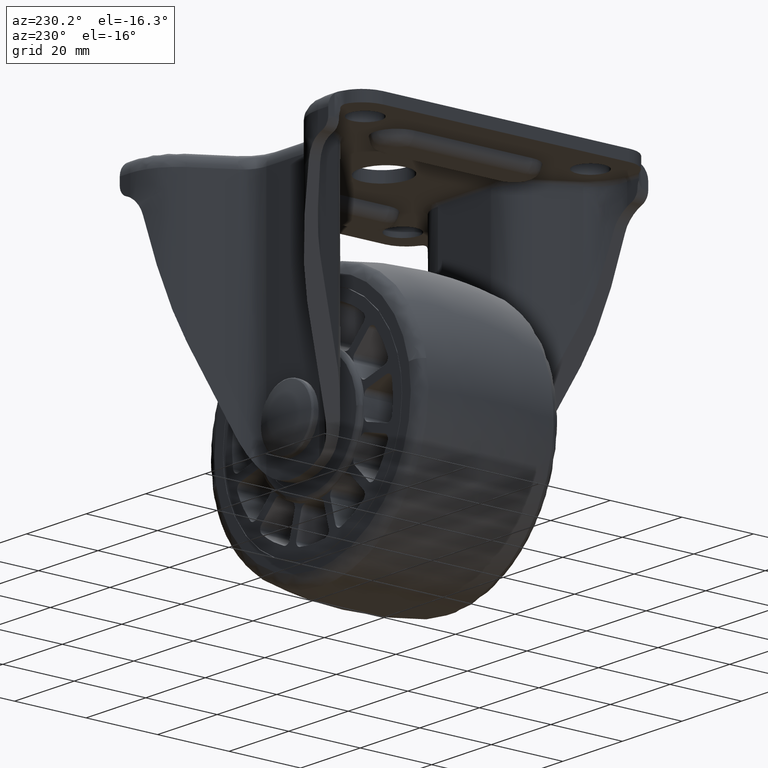
[diagram: clean part render]
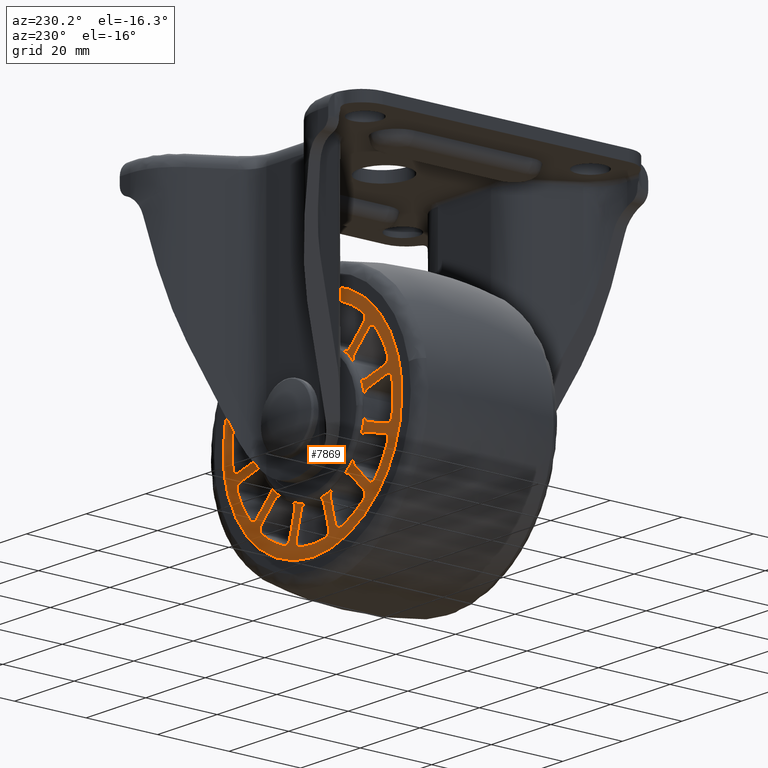
[diagram: same view with one face highlighted and labeled with its STEP entity id]
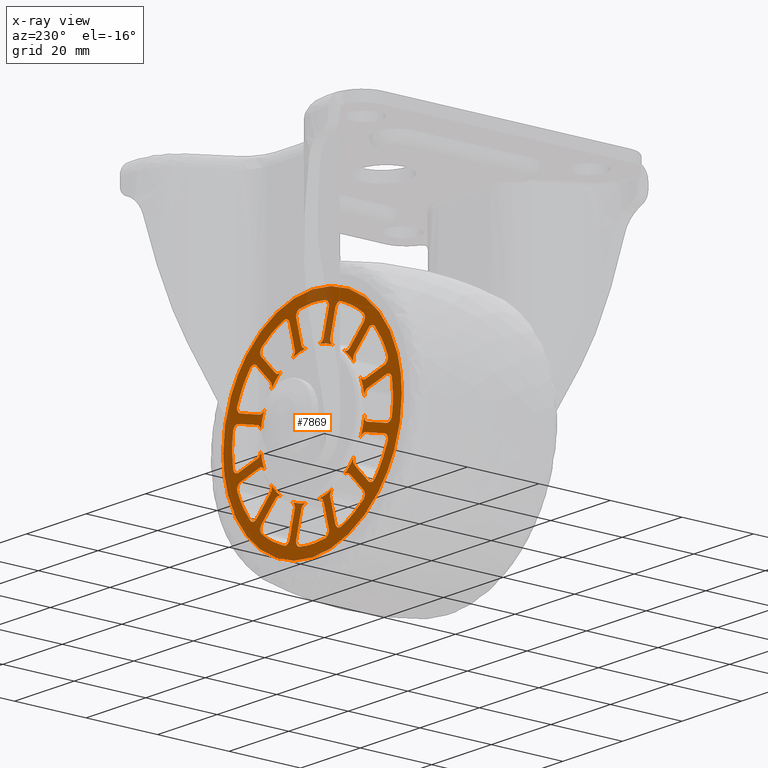
[diagram: x-ray of the same camera — body ghosted, the highlighted face saturated]
A machine part, auxiliary view. The second image highlights one B-rep face of the part: STEP entity #7869.
The next image is the same camera in x-ray: the body ghosted, the highlighted face saturated — about 5% of this face is hidden behind the body in this view.
In plain terms, the highlighted face is a freeform B-spline surface patch.
Its self-contained STEP definition (entity closure, byte-faithful):
#3391=CARTESIAN_POINT('',(-22.118320482945801,20.0,-20.267706602534432));
#3392=VERTEX_POINT('',#3391);
#3398=CARTESIAN_POINT('',(1.421085E-014,20.0,-29.999999999999329));
#3399=VERTEX_POINT('',#3398);
#3400=CARTESIAN_POINT('',(-22.118320482945801,20.0,-20.267706602534432));
#3401=CARTESIAN_POINT('',(-20.543412341701359,20.0,-21.987159459936588));
#3402=CARTESIAN_POINT('',(-17.878181190465710,19.999999999999979,-24.288365055513051));
#3403=CARTESIAN_POINT('',(-14.144299691620031,20.000000000000060,-26.513983206350861));
#3404=CARTESIAN_POINT('',(-11.325356661759740,19.999999999999901,-27.831441113129092));
#3405=CARTESIAN_POINT('',(-8.328902515694940,20.000000000000131,-28.891534198482550));
#3406=CARTESIAN_POINT('',(-4.468968614085997,19.999999999999769,-29.768711258171599));
#3407=CARTESIAN_POINT('',(-1.619205633399887,20.000000000000050,-30.000104694219040));
#3408=CARTESIAN_POINT('',(1.421085E-014,20.0,-29.999999999999329));
#3409=B_SPLINE_CURVE_WITH_KNOTS('',3,(#3400,#3401,#3402,#3403,#3404,#3405,#3406,#3407,#3408),.UNSPECIFIED.,.F.,.U.,(4,1,1,1,1,1,4),(0.000000016420717,6.994967007960650,10.492450469757220,13.018384477174131,16.321575006985942,20.013377045874851,24.870985512071410),.UNSPECIFIED.);
#3410=EDGE_CURVE('',#3392,#3399,#3409,.T.);
#3412=CARTESIAN_POINT('',(29.999999999999240,20.0,0.000002135644688));
#3413=VERTEX_POINT('',#3412);
#3414=CARTESIAN_POINT('',(1.421085E-014,20.0,-29.999999999999329));
#3415=CARTESIAN_POINT('',(1.288534897417301,20.000000000000021,-30.000048157885420));
#3416=CARTESIAN_POINT('',(3.804248428127038,20.000000000000011,-29.837657231888560));
#3417=CARTESIAN_POINT('',(7.969545609570394,19.999999999999879,-29.035803940932318));
#3418=CARTESIAN_POINT('',(12.037398464283511,20.000000000000121,-27.608404545120720));
#3419=CARTESIAN_POINT('',(16.430683507402190,20.0,-25.260153635695659));
#3420=CARTESIAN_POINT('',(20.101088331678369,19.999999999999812,-22.449833385149681));
#3421=CARTESIAN_POINT('',(22.965905718656931,20.000000000000110,-19.403244059726461));
#3422=CARTESIAN_POINT('',(24.949923380860231,20.000000000000071,-16.745163829496299));
#3423=CARTESIAN_POINT('',(26.632686145593830,19.999999999999890,-13.957170264982061));
#3424=CARTESIAN_POINT('',(28.031508794234320,20.000000000000039,-10.878267963352251));
#3425=CARTESIAN_POINT('',(29.155660648970969,19.999999999999989,-7.367262108725715));
#3426=CARTESIAN_POINT('',(29.841683038956869,20.000000000000028,-3.804264895217803));
#3427=CARTESIAN_POINT('',(30.000029236529919,20.0,-1.227178690340524));
#3428=CARTESIAN_POINT('',(29.999999999999240,20.0,0.000002135644688));
#3429=B_SPLINE_CURVE_WITH_KNOTS('',3,(#3414,#3415,#3416,#3417,#3418,#3419,#3420,#3421,#3422,#3423,#3424,#3425,#3426,#3427,#3428),.UNSPECIFIED.,.F.,.U.,(4,1,1,1,1,1,1,1,1,1,1,1,4),(0.000000059805103,3.865604539096005,7.547196904018151,12.701385605501500,16.751119216727929,22.457559518012349,26.507222758497939,29.268399325212499,32.397713253435583,36.263367493639883,39.392691608923272,43.442417270497920,47.123964931238177),.UNSPECIFIED.);
#3430=EDGE_CURVE('',#3399,#3413,#3429,.T.);
#3432=CARTESIAN_POINT('',(22.118320482945940,20.0,20.267706602534499));
#3433=VERTEX_POINT('',#3432);
#3434=CARTESIAN_POINT('',(29.999999999999240,20.0,0.000002135644688));
#3435=CARTESIAN_POINT('',(30.000061995038369,20.000000000000028,1.448763107275648));
#3436=CARTESIAN_POINT('',(29.793925704682650,19.999999999999929,4.288319466723549));
#3437=CARTESIAN_POINT('',(28.965769555178380,20.000000000000139,8.091258081381831));
#3438=CARTESIAN_POINT('',(27.626074866746940,19.999999999999790,11.926040554881430));
#3439=CARTESIAN_POINT('',(25.548373294053100,20.000000000000071,16.022416470952511));
#3440=CARTESIAN_POINT('',(23.410471308019890,20.000000000000050,18.857903905858720));
#3441=CARTESIAN_POINT('',(22.118320482945940,20.0,20.267706602534499));
#3442=B_SPLINE_CURVE_WITH_KNOTS('',3,(#3434,#3435,#3436,#3437,#3438,#3439,#3440,#3441),.UNSPECIFIED.,.F.,.U.,(4,1,1,1,1,4),(0.000000015131757,4.346281258723813,8.518729505390734,11.648036816609590,16.515880954483048,22.252977182008731),.UNSPECIFIED.);
#3443=EDGE_CURVE('',#3413,#3433,#3442,.T.);
#3473=CARTESIAN_POINT('',(1.421085E-014,20.0,29.999999999999279));
#3474=VERTEX_POINT('',#3473);
#3475=CARTESIAN_POINT('',(22.118320482945940,20.0,20.267706602534499));
#3476=CARTESIAN_POINT('',(20.543448549220692,19.999999999999911,21.987191293460540));
#3477=CARTESIAN_POINT('',(17.532644877480688,20.000000000000110,24.586653580668731));
#3478=CARTESIAN_POINT('',(12.668877477973520,19.999999999999901,27.338639485432850));
#3479=CARTESIAN_POINT('',(8.278713403921213,20.0,28.956018233733651));
#3480=CARTESIAN_POINT('',(4.015615146172478,19.999999999999972,29.823566877752189));
#3481=CARTESIAN_POINT('',(1.295358639100353,20.000000000000028,30.000037248127679));
#3482=CARTESIAN_POINT('',(1.421085E-014,20.0,29.999999999999279));
#3483=B_SPLINE_CURVE_WITH_KNOTS('',3,(#3475,#3476,#3477,#3478,#3479,#3480,#3481,#3482),.UNSPECIFIED.,.F.,.U.,(4,1,1,1,1,4),(0.000000016420309,6.994967007961080,11.852601310532441,16.710187885054250,20.984903283038221,24.870985512071471),.UNSPECIFIED.);
#3484=EDGE_CURVE('',#3433,#3474,#3483,.T.);
#3486=CARTESIAN_POINT('',(-29.999999999999211,20.0,-0.000002135644119));
#3487=VERTEX_POINT('',#3486);
#3488=CARTESIAN_POINT('',(1.421085E-014,20.0,29.999999999999279));
#3489=CARTESIAN_POINT('',(-1.288535653154668,19.999999999999940,30.000051230094339));
#3490=CARTESIAN_POINT('',(-3.681523931846349,20.000000000000082,29.845573179095521));
#3491=CARTESIAN_POINT('',(-7.366831818412982,20.000000000000082,29.159480662698261));
#3492=CARTESIAN_POINT('',(-10.474086499767910,19.999999999999961,28.175083196001150));
#3493=CARTESIAN_POINT('',(-13.903298855445140,20.000000000000131,26.667638955934329));
#3494=CARTESIAN_POINT('',(-17.135729525113270,19.999999999999812,24.757087762969459));
#3495=CARTESIAN_POINT('',(-20.193446219572390,20.000000000000210,22.278790265020660));
#3496=CARTESIAN_POINT('',(-22.982242092797190,20.000000000000110,19.420820207431181));
#3497=CARTESIAN_POINT('',(-25.376076561162041,19.999999999999289,16.213694007080040));
#3498=CARTESIAN_POINT('',(-27.579381396047559,20.000000000001549,12.091624313252909));
#3499=CARTESIAN_POINT('',(-29.039489890144552,19.999999999999091,7.971198975048055));
#3500=CARTESIAN_POINT('',(-29.841667263386331,20.000000000000281,3.804258908688299));
#3501=CARTESIAN_POINT('',(-30.000028093448972,19.999999999999961,1.227178618008104));
#3502=CARTESIAN_POINT('',(-29.999999999999211,20.0,-0.000002135644119));
#3503=B_SPLINE_CURVE_WITH_KNOTS('',3,(#3488,#3489,#3490,#3491,#3492,#3493,#3494,#3495,#3496,#3497,#3498,#3499,#3500,#3501,#3502),.UNSPECIFIED.,.F.,.U.,(4,1,1,1,1,1,1,1,1,1,1,1,4),(0.000000059789429,3.865604539083122,7.179021569728249,11.228755175923890,13.621773411113550,18.407809988479251,22.457559518009639,25.402719660325101,30.372847031219120,34.422579929591130,39.392691608922711,43.442417270497558,47.123964931237857),.UNSPECIFIED.);
#3504=EDGE_CURVE('',#3474,#3487,#3503,.T.);
#3506=CARTESIAN_POINT('',(-29.999999999999211,20.0,-0.000002135644119));
#3507=CARTESIAN_POINT('',(-30.000019092406209,20.000000000000028,-1.216955549221823));
#3508=CARTESIAN_POINT('',(-29.837635612698801,19.999999999999851,-3.882685033745843));
#3509=CARTESIAN_POINT('',(-29.176292208969581,20.000000000000281,-7.246331090802899));
#3510=CARTESIAN_POINT('',(-28.116565369295561,19.999999999999549,-10.621364413064860));
#3511=CARTESIAN_POINT('',(-26.939805469888430,20.000000000000160,-13.339603802906661));
#3512=CARTESIAN_POINT('',(-24.955776788591560,20.000000000000039,-16.815593852058129));
#3513=CARTESIAN_POINT('',(-23.332160227562749,19.999999999999940,-18.943344611809980));
#3514=CARTESIAN_POINT('',(-22.118320482945801,20.0,-20.267706602534432));
#3515=B_SPLINE_CURVE_WITH_KNOTS('',3,(#3506,#3507,#3508,#3509,#3510,#3511,#3512,#3513,#3514),.UNSPECIFIED.,.F.,.U.,(4,1,1,1,1,1,4),(0.000000015126343,3.650870622962849,7.997174027452564,10.257252233128220,14.255803169674090,16.863584826087880,22.252977182009261),.UNSPECIFIED.);
#3516=EDGE_CURVE('',#3487,#3392,#3515,.T.);
#3696=CARTESIAN_POINT('',(-12.269700368272121,20.0,-12.478159025113801));
#3697=VERTEX_POINT('',#3696);
#3703=CARTESIAN_POINT('',(-13.979317582551960,20.0,-10.527520040451380));
#3704=VERTEX_POINT('',#3703);
#3705=CARTESIAN_POINT('',(-13.979317582551960,20.0,-10.527520040451380));
#3706=CARTESIAN_POINT('',(-13.458748748590590,19.999999999999961,-11.218832841512929));
#3707=CARTESIAN_POINT('',(-12.886775208948499,19.999999999999979,-11.871426404184771));
#3708=CARTESIAN_POINT('',(-12.269700368272121,20.0,-12.478159025113801));
#3709=B_SPLINE_CURVE_WITH_KNOTS('',3,(#3705,#3706,#3707,#3708),.UNSPECIFIED.,.F.,.U.,(4,4),(7.246910E-010,2.596186519783803),.UNSPECIFIED.);
#3710=EDGE_CURVE('',#3704,#3697,#3709,.T.);
#3752=CARTESIAN_POINT('',(10.527520040450099,20.0,13.979317582552440));
#3753=VERTEX_POINT('',#3752);
#3759=CARTESIAN_POINT('',(12.269700368272121,20.0,12.478159025113451));
#3760=VERTEX_POINT('',#3759);
#3761=CARTESIAN_POINT('',(12.269700368272121,20.0,12.478159025113451));
#3762=CARTESIAN_POINT('',(11.722726899226650,19.999999999999979,13.016024681297029));
#3763=CARTESIAN_POINT('',(11.140321178524450,20.000000000000021,13.517848880150449));
#3764=CARTESIAN_POINT('',(10.527520040450099,20.0,13.979317582552440));
#3765=B_SPLINE_CURVE_WITH_KNOTS('',3,(#3761,#3762,#3763,#3764),.UNSPECIFIED.,.F.,.U.,(4,4),(6.612471E-010,2.301375152268508),.UNSPECIFIED.);
#3766=EDGE_CURVE('',#3760,#3753,#3765,.T.);
#3775=CARTESIAN_POINT('',(6.842684133834861,20.0,16.106758585156349));
#3776=VERTEX_POINT('',#3775);
#3777=CARTESIAN_POINT('',(2.127441002603275,20.0,17.370204174285899));
#3778=VERTEX_POINT('',#3777);
#3779=CARTESIAN_POINT('',(6.842684133834861,20.0,16.106758585156349));
#3780=CARTESIAN_POINT('',(5.340232218286619,20.000000000000060,16.745407427285649));
#3781=CARTESIAN_POINT('',(3.747947872319128,19.999999999999979,17.172144408969750));
#3782=CARTESIAN_POINT('',(2.127441002603275,20.0,17.370204174285899));
#3783=B_SPLINE_CURVE_WITH_KNOTS('',3,(#3779,#3780,#3781,#3782),.UNSPECIFIED.,.F.,.U.,(4,4),(2.552871E-009,4.897561501576051),.UNSPECIFIED.);
#3784=EDGE_CURVE('',#3776,#3778,#3783,.T.);
#3809=CARTESIAN_POINT('',(-2.127441002604545,20.0,17.370204174285899));
#3810=VERTEX_POINT('',#3809);
#3811=CARTESIAN_POINT('',(-6.842684133835970,20.0,16.106758585155699));
#3812=VERTEX_POINT('',#3811);
#3813=CARTESIAN_POINT('',(-2.127441002604545,20.0,17.370204174285899));
#3814=CARTESIAN_POINT('',(-3.747959474830807,19.999999999999940,17.172190942648680));
#3815=CARTESIAN_POINT('',(-5.340218197858325,20.000000000000060,16.745354043501909));
#3816=CARTESIAN_POINT('',(-6.842684133835970,20.0,16.106758585155699));
#3817=B_SPLINE_CURVE_WITH_KNOTS('',3,(#3813,#3814,#3815,#3816),.UNSPECIFIED.,.F.,.U.,(4,4),(2.553084E-009,4.897561501576061),.UNSPECIFIED.);
#3818=EDGE_CURVE('',#3810,#3812,#3817,.T.);
#3843=CARTESIAN_POINT('',(-10.527520040451201,20.0,13.979317582551801));
#3844=VERTEX_POINT('',#3843);
#3845=CARTESIAN_POINT('',(-13.979317582552600,20.0,10.527520040449939));
#3846=VERTEX_POINT('',#3845);
#3847=CARTESIAN_POINT('',(-10.527520040451201,20.0,13.979317582551801));
#3848=CARTESIAN_POINT('',(-11.831778631942379,20.000000000000021,12.997428296728700));
#3849=CARTESIAN_POINT('',(-12.997580672515181,20.000000000000028,11.831929612280341));
#3850=CARTESIAN_POINT('',(-13.979317582552600,20.0,10.527520040449939));
#3851=B_SPLINE_CURVE_WITH_KNOTS('',3,(#3847,#3848,#3849,#3850),.UNSPECIFIED.,.F.,.U.,(4,4),(2.552842E-009,4.897561501576065),.UNSPECIFIED.);
#3852=EDGE_CURVE('',#3844,#3846,#3851,.T.);
#3877=CARTESIAN_POINT('',(-16.106758585156498,20.0,6.842684133834690));
#3878=VERTEX_POINT('',#3877);
#3879=CARTESIAN_POINT('',(-17.370204174286101,20.0,2.127441002603105));
#3880=VERTEX_POINT('',#3879);
#3881=CARTESIAN_POINT('',(-16.106758585156498,20.0,6.842684133834690));
#3882=CARTESIAN_POINT('',(-16.745541609575739,20.000000000000050,5.340270487849852));
#3883=CARTESIAN_POINT('',(-17.171992654324939,20.0,3.747906573111419));
#3884=CARTESIAN_POINT('',(-17.370204174286101,20.0,2.127441002603105));
#3885=B_SPLINE_CURVE_WITH_KNOTS('',3,(#3881,#3882,#3883,#3884),.UNSPECIFIED.,.F.,.U.,(4,4),(2.553087E-009,4.897561501576056),.UNSPECIFIED.);
#3886=EDGE_CURVE('',#3878,#3880,#3885,.T.);
#3911=CARTESIAN_POINT('',(-17.370204174286052,20.0,-2.127441002604715));
#3912=VERTEX_POINT('',#3911);
#3913=CARTESIAN_POINT('',(-16.106758585155902,20.0,-6.842684133836140));
#3914=VERTEX_POINT('',#3913);
#3915=CARTESIAN_POINT('',(-17.370204174286052,20.0,-2.127441002604715));
#3916=CARTESIAN_POINT('',(-17.172144462508761,20.0,-3.747948028285103));
#3917=CARTESIAN_POINT('',(-16.745407544754539,19.999999999999979,-5.340231698814865));
#3918=CARTESIAN_POINT('',(-16.106758585155902,20.0,-6.842684133836140));
#3919=B_SPLINE_CURVE_WITH_KNOTS('',3,(#3915,#3916,#3917,#3918),.UNSPECIFIED.,.F.,.U.,(4,4),(2.552945E-009,4.897561501576045),.UNSPECIFIED.);
#3920=EDGE_CURVE('',#3912,#3914,#3919,.T.);
#3966=CARTESIAN_POINT('',(13.979317582551960,20.0,10.527520040451041));
#3967=VERTEX_POINT('',#3966);
#3968=CARTESIAN_POINT('',(13.979317582551960,20.0,10.527520040451041));
#3969=CARTESIAN_POINT('',(13.458747042028291,19.999999999999972,11.218834098560039));
#3970=CARTESIAN_POINT('',(12.886775448338961,20.000000000000060,11.871426512858660));
#3971=CARTESIAN_POINT('',(12.269700368272121,20.0,12.478159025113451));
#3972=B_SPLINE_CURVE_WITH_KNOTS('',3,(#3968,#3969,#3970,#3971),.UNSPECIFIED.,.F.,.U.,(4,4),(7.247092E-010,2.596186519783797),.UNSPECIFIED.);
#3973=EDGE_CURVE('',#3967,#3760,#3972,.T.);
#4003=CARTESIAN_POINT('',(-10.527520040450099,20.0,-13.979317582552779));
#4004=VERTEX_POINT('',#4003);
#4010=CARTESIAN_POINT('',(-12.269700368272121,20.0,-12.478159025113801));
#4011=CARTESIAN_POINT('',(-11.722727123497140,19.999999999999869,-13.016023616691321));
#4012=CARTESIAN_POINT('',(-11.140321328058921,20.000000000000050,-13.517849800662569));
#4013=CARTESIAN_POINT('',(-10.527520040450099,20.0,-13.979317582552779));
#4014=B_SPLINE_CURVE_WITH_KNOTS('',3,(#4010,#4011,#4012,#4013),.UNSPECIFIED.,.F.,.U.,(4,4),(6.612595E-010,2.301375152268504),.UNSPECIFIED.);
#4015=EDGE_CURVE('',#3697,#4004,#4014,.T.);
#4022=CARTESIAN_POINT('',(-6.842684133834861,20.0,-16.106758585156712));
#4023=VERTEX_POINT('',#4022);
#4024=CARTESIAN_POINT('',(-2.127441002603275,20.0,-17.370204174286251));
#4025=VERTEX_POINT('',#4024);
#4026=CARTESIAN_POINT('',(-6.842684133834861,20.0,-16.106758585156712));
#4027=CARTESIAN_POINT('',(-5.340218139453963,20.000000000000039,-16.745353820975101));
#4028=CARTESIAN_POINT('',(-3.747959544874868,19.999999999999940,-17.172191058466360));
#4029=CARTESIAN_POINT('',(-2.127441002603275,20.0,-17.370204174286251));
#4030=B_SPLINE_CURVE_WITH_KNOTS('',3,(#4026,#4027,#4028,#4029),.UNSPECIFIED.,.F.,.U.,(4,4),(2.553047E-009,4.897561501576046),.UNSPECIFIED.);
#4031=EDGE_CURVE('',#4023,#4025,#4030,.T.);
#4056=CARTESIAN_POINT('',(2.127441002604545,20.0,-17.370204174286251));
#4057=VERTEX_POINT('',#4056);
#4058=CARTESIAN_POINT('',(6.842684133835970,20.0,-16.106758585156051));
#4059=VERTEX_POINT('',#4058);
#4060=CARTESIAN_POINT('',(2.127441002604545,20.0,-17.370204174286251));
#4061=CARTESIAN_POINT('',(3.747947860398670,20.000000000000021,-17.172144072179279));
#4062=CARTESIAN_POINT('',(5.340232354016271,20.0,-16.745408563659279));
#4063=CARTESIAN_POINT('',(6.842684133835970,20.0,-16.106758585156051));
#4064=B_SPLINE_CURVE_WITH_KNOTS('',3,(#4060,#4061,#4062,#4063),.UNSPECIFIED.,.F.,.U.,(4,4),(2.553194E-009,4.897561501576058),.UNSPECIFIED.);
#4065=EDGE_CURVE('',#4057,#4059,#4064,.T.);
#4090=CARTESIAN_POINT('',(10.527520040451201,20.0,-13.979317582552140));
#4091=VERTEX_POINT('',#4090);
#4092=CARTESIAN_POINT('',(13.979317582552600,20.0,-10.527520040450280));
#4093=VERTEX_POINT('',#4092);
#4094=CARTESIAN_POINT('',(10.527520040451201,20.0,-13.979317582552140));
#4095=CARTESIAN_POINT('',(11.831890114485430,19.999999999999989,-12.997539058385779));
#4096=CARTESIAN_POINT('',(12.997481169409079,19.999999999999989,-11.831833031548390));
#4097=CARTESIAN_POINT('',(13.979317582552600,20.0,-10.527520040450280));
#4098=B_SPLINE_CURVE_WITH_KNOTS('',3,(#4094,#4095,#4096,#4097),.UNSPECIFIED.,.F.,.U.,(4,4),(2.553094E-009,4.897561501576060),.UNSPECIFIED.);
#4099=EDGE_CURVE('',#4091,#4093,#4098,.T.);
#4124=CARTESIAN_POINT('',(16.106758585156498,20.0,-6.842684133835030));
#4125=VERTEX_POINT('',#4124);
#4126=CARTESIAN_POINT('',(17.370204174286101,20.0,-2.127441002603445));
#4127=VERTEX_POINT('',#4126);
#4128=CARTESIAN_POINT('',(16.106758585156498,20.0,-6.842684133835030));
#4129=CARTESIAN_POINT('',(16.745407364029660,19.999999999999989,-5.340232011518452));
#4130=CARTESIAN_POINT('',(17.172144418883729,20.000000000000039,-3.747948158662476));
#4131=CARTESIAN_POINT('',(17.370204174286101,20.0,-2.127441002603445));
#4132=B_SPLINE_CURVE_WITH_KNOTS('',3,(#4128,#4129,#4130,#4131),.UNSPECIFIED.,.F.,.U.,(4,4),(2.553141E-009,4.897561501576058),.UNSPECIFIED.);
#4133=EDGE_CURVE('',#4125,#4127,#4132,.T.);
#4158=CARTESIAN_POINT('',(17.370204174286052,20.0,2.127441002604375));
#4159=VERTEX_POINT('',#4158);
#4160=CARTESIAN_POINT('',(16.106758585155902,20.0,6.842684133835800));
#4161=VERTEX_POINT('',#4160);
#4162=CARTESIAN_POINT('',(17.370204174286052,20.0,2.127441002604375));
#4163=CARTESIAN_POINT('',(17.172180390025499,20.000000000000011,3.747956395445756));
#4164=CARTESIAN_POINT('',(16.745347027835638,20.000000000000050,5.340217140948309));
#4165=CARTESIAN_POINT('',(16.106758585155902,20.0,6.842684133835800));
#4166=B_SPLINE_CURVE_WITH_KNOTS('',3,(#4162,#4163,#4164,#4165),.UNSPECIFIED.,.F.,.U.,(4,4),(2.552967E-009,4.897561501576044),.UNSPECIFIED.);
#4167=EDGE_CURVE('',#4159,#4161,#4166,.T.);
#5127=CARTESIAN_POINT('',(-12.490539075379999,20.0,-14.116884635507400));
#5128=VERTEX_POINT('',#5127);
#5134=CARTESIAN_POINT('',(-10.527520040450099,20.0,-13.979317582552779));
#5135=CARTESIAN_POINT('',(-10.714870415307759,20.000000000000021,-13.837703374655900));
#5136=CARTESIAN_POINT('',(-11.041572756720850,19.999999999999950,-13.696159107641870));
#5137=CARTESIAN_POINT('',(-11.524326273319939,20.000000000000071,-13.665281094266550));
#5138=CARTESIAN_POINT('',(-12.001409626937070,19.999999999999840,-13.752827113076970));
#5139=CARTESIAN_POINT('',(-12.324785430062111,20.000000000000171,-13.950512283477901));
#5140=CARTESIAN_POINT('',(-12.490539075379999,20.0,-14.116884635507400));
#5141=B_SPLINE_CURVE_WITH_KNOTS('',3,(#5134,#5135,#5136,#5137,#5138,#5139,#5140),.UNSPECIFIED.,.F.,.U.,(4,1,1,1,4),(0.000000206209347,0.704273387018853,1.039670231684445,1.442069977434469,2.146344358460982),.UNSPECIFIED.);
#5142=EDGE_CURVE('',#4004,#5128,#5141,.T.);
#5154=CARTESIAN_POINT('',(-17.120419967214001,20.0,-18.746765527341552));
#5155=VERTEX_POINT('',#5154);
#5161=CARTESIAN_POINT('',(-17.120419967214001,20.0,-18.746765527341552));
#5162=CARTESIAN_POINT('',(-12.490539075379999,20.0,-14.116884635507400));
#5163=QUASI_UNIFORM_CURVE('',1,(#5161,#5162),.UNSPECIFIED.,.F.,.U.);
#5164=EDGE_CURVE('',#5155,#5128,#5163,.T.);
#5185=CARTESIAN_POINT('',(-17.004451549196599,20.0,-20.972568390114048));
#5186=VERTEX_POINT('',#5185);
#5192=CARTESIAN_POINT('',(-17.120419967214001,20.0,-18.746765527341552));
#5193=CARTESIAN_POINT('',(-17.250076327829341,20.000000000000011,-18.876205209623979));
#5194=CARTESIAN_POINT('',(-17.438297530101899,19.999999999999989,-19.150480926865072));
#5195=CARTESIAN_POINT('',(-17.567578948476040,20.000000000000011,-19.608551650179219));
#5196=CARTESIAN_POINT('',(-17.562302350462939,20.000000000000028,-20.018378392517221));
#5197=CARTESIAN_POINT('',(-17.455146305521659,19.999999999999890,-20.398876411384681));
#5198=CARTESIAN_POINT('',(-17.270516189325608,20.000000000000160,-20.718982156946389));
#5199=CARTESIAN_POINT('',(-17.095936984854141,19.999999999999961,-20.898421139069249));
#5200=CARTESIAN_POINT('',(-17.004451549196599,20.0,-20.972568390114048));
#5201=B_SPLINE_CURVE_WITH_KNOTS('',3,(#5192,#5193,#5194,#5195,#5196,#5197,#5198,#5199,#5200),.UNSPECIFIED.,.F.,.U.,(4,1,1,1,1,1,4),(0.000000294199491,0.549594635074955,0.981431694796958,1.413231686264520,1.766543562396464,2.159143472763285,2.512430472347462),.UNSPECIFIED.);
#5202=EDGE_CURVE('',#5155,#5186,#5201,.T.);
#5223=CARTESIAN_POINT('',(-9.660551233846499,20.0,-25.212571214083201));
#5224=VERTEX_POINT('',#5223);
#5230=CARTESIAN_POINT('',(-17.004451549196599,20.0,-20.972568390114048));
#5231=CARTESIAN_POINT('',(-15.764367188930960,19.999999999999972,-21.978248560352899));
#5232=CARTESIAN_POINT('',(-13.400457632907809,20.000000000000039,-23.569484356275868));
#5233=CARTESIAN_POINT('',(-10.820173333037010,20.000000000000028,-24.768304761667469));
#5234=CARTESIAN_POINT('',(-9.660551233846499,20.0,-25.212571214083201));
#5235=B_SPLINE_CURVE_WITH_KNOTS('',3,(#5230,#5231,#5232,#5233,#5234),.UNSPECIFIED.,.F.,.U.,(4,1,4),(2.550459E-009,4.789828452925803,8.515260582169514),.UNSPECIFIED.);
#5236=EDGE_CURVE('',#5186,#5224,#5235,.T.);
#5257=CARTESIAN_POINT('',(-7.674965201859860,20.0,-24.200101378737148));
#5258=VERTEX_POINT('',#5257);
#5264=CARTESIAN_POINT('',(-9.660551233846499,20.0,-25.212571214083201));
#5265=CARTESIAN_POINT('',(-9.513949121601055,20.000000000000021,-25.268819915048930));
#5266=CARTESIAN_POINT('',(-9.189939823479140,19.999999999999972,-25.337409980297839));
#5267=CARTESIAN_POINT('',(-8.675778390790365,20.000000000000039,-25.276485563506800));
#5268=CARTESIAN_POINT('',(-8.249083972359692,19.999999999999979,-25.058790208926879));
#5269=CARTESIAN_POINT('',(-7.881049376961449,20.000000000000011,-24.700098661646130));
#5270=CARTESIAN_POINT('',(-7.728907551034490,19.999999999999979,-24.402449069867568));
#5271=CARTESIAN_POINT('',(-7.674965201859860,20.0,-24.200101378737148));
#5272=B_SPLINE_CURVE_WITH_KNOTS('',3,(#5264,#5265,#5266,#5267,#5268,#5269,#5270,#5271),.UNSPECIFIED.,.F.,.U.,(4,1,1,1,1,4),(0.000000294202844,0.471068190018869,0.981431694799012,1.531002209963149,1.884322930372822,2.512430472348565),.UNSPECIFIED.);
#5273=EDGE_CURVE('',#5224,#5258,#5272,.T.);
#5285=CARTESIAN_POINT('',(-5.980311178952380,20.0,-17.875566463995650));
#5286=VERTEX_POINT('',#5285);
#5292=CARTESIAN_POINT('',(-5.980311178952380,20.0,-17.875566463995650));
#5293=CARTESIAN_POINT('',(-7.674965201859860,20.0,-24.200101378737148));
#5294=QUASI_UNIFORM_CURVE('',1,(#5292,#5293),.UNSPECIFIED.,.F.,.U.);
#5295=EDGE_CURVE('',#5286,#5258,#5294,.T.);
#5317=CARTESIAN_POINT('',(-5.980311178952380,20.0,-17.875566463995650));
#5318=CARTESIAN_POINT('',(-5.933865680775449,20.000000000000028,-17.702819595561561));
#5319=CARTESIAN_POINT('',(-5.908725845844701,20.0,-17.397196201996831));
#5320=CARTESIAN_POINT('',(-6.006546919287498,20.000000000000028,-16.957390022262022));
#5321=CARTESIAN_POINT('',(-6.181066388204080,19.999999999999918,-16.627973745936458));
#5322=CARTESIAN_POINT('',(-6.459271820851587,20.000000000000121,-16.319062304759171));
#5323=CARTESIAN_POINT('',(-6.688295065329531,19.999999999999918,-16.172224893674120));
#5324=CARTESIAN_POINT('',(-6.842684133834861,20.0,-16.106758585156712));
#5325=B_SPLINE_CURVE_WITH_KNOTS('',3,(#5317,#5318,#5319,#5320,#5321,#5322,#5323,#5324),.UNSPECIFIED.,.F.,.U.,(4,1,1,1,1,4),(0.000000206208497,0.536587114089817,0.905509653273051,1.341461999445163,1.643297279578439,2.146344358460908),.UNSPECIFIED.);
#5326=EDGE_CURVE('',#5286,#4023,#5325,.T.);
#5347=CARTESIAN_POINT('',(-17.875566463994900,20.0,-5.980311178953650));
#5348=VERTEX_POINT('',#5347);
#5354=CARTESIAN_POINT('',(-16.106758585155902,20.0,-6.842684133836140));
#5355=CARTESIAN_POINT('',(-16.202459351195699,20.000000000000011,-6.615978671614334));
#5356=CARTESIAN_POINT('',(-16.418518169918109,19.999999999999989,-6.331840896740184));
#5357=CARTESIAN_POINT('',(-16.814210227381810,20.0,-6.074650274910644));
#5358=CARTESIAN_POINT('',(-17.120687374724291,20.000000000000021,-5.961721612371994));
#5359=CARTESIAN_POINT('',(-17.488345883906700,19.999999999999950,-5.913854901873925));
#5360=CARTESIAN_POINT('',(-17.735205896259330,20.000000000000131,-5.942642494816179));
#5361=CARTESIAN_POINT('',(-17.875566463994900,20.0,-5.980311178953650));
#5362=B_SPLINE_CURVE_WITH_KNOTS('',3,(#5354,#5355,#5356,#5357,#5358,#5359,#5360,#5361),.UNSPECIFIED.,.F.,.U.,(4,1,1,1,1,4),(0.000000206210690,0.737822190936625,1.039670231684615,1.408525640595344,1.710371881744211,2.146344358460979),.UNSPECIFIED.);
#5363=EDGE_CURVE('',#3914,#5348,#5362,.T.);
#5375=CARTESIAN_POINT('',(-24.200101378736349,20.0,-7.674965201861170));
#5376=VERTEX_POINT('',#5375);
#5382=CARTESIAN_POINT('',(-24.200101378736349,20.0,-7.674965201861170));
#5383=CARTESIAN_POINT('',(-17.875566463994900,20.0,-5.980311178953650));
#5384=QUASI_UNIFORM_CURVE('',1,(#5382,#5383),.UNSPECIFIED.,.F.,.U.);
#5385=EDGE_CURVE('',#5376,#5348,#5384,.T.);
#5406=CARTESIAN_POINT('',(-25.212571214082850,20.0,-9.660551233847009));
#5407=VERTEX_POINT('',#5406);
#5413=CARTESIAN_POINT('',(-24.200101378736349,20.0,-7.674965201861170));
#5414=CARTESIAN_POINT('',(-24.377113902393258,20.000000000000021,-7.722237401972994));
#5415=CARTESIAN_POINT('',(-24.689265482377809,19.999999999999979,-7.871370542446115));
#5416=CARTESIAN_POINT('',(-25.026538080473731,20.0,-8.208537993020004));
#5417=CARTESIAN_POINT('',(-25.240770770836679,20.000000000000021,-8.602834458237535));
#5418=CARTESIAN_POINT('',(-25.345672404869489,19.999999999999989,-9.095173077431294));
#5419=CARTESIAN_POINT('',(-25.287752312020491,20.000000000000021,-9.465107181980065));
#5420=CARTESIAN_POINT('',(-25.212571214082850,20.0,-9.660551233847009));
#5421=B_SPLINE_CURVE_WITH_KNOTS('',3,(#5413,#5414,#5415,#5416,#5417,#5418,#5419,#5420),.UNSPECIFIED.,.F.,.U.,(4,1,1,1,1,4),(0.000000294199873,0.549594635075007,1.020706356012316,1.413231686264329,1.884322930371513,2.512430472347470),.UNSPECIFIED.);
#5422=EDGE_CURVE('',#5376,#5407,#5421,.T.);
#5443=CARTESIAN_POINT('',(-20.972568390113700,20.0,-17.004451549197050));
#5444=VERTEX_POINT('',#5443);
#5450=CARTESIAN_POINT('',(-25.212571214082850,20.0,-9.660551233847009));
#5451=CARTESIAN_POINT('',(-24.562229859408610,19.999999999999989,-11.358666822185540));
#5452=CARTESIAN_POINT('',(-23.277568380603292,20.000000000000060,-13.905940771333560));
#5453=CARTESIAN_POINT('',(-21.615003707421899,20.000000000000050,-16.212119907277149));
#5454=CARTESIAN_POINT('',(-20.972568390113700,20.0,-17.004451549197050));
#5455=B_SPLINE_CURVE_WITH_KNOTS('',3,(#5450,#5451,#5452,#5453,#5454),.UNSPECIFIED.,.F.,.U.,(4,1,4),(2.549974E-009,5.455087814724662,8.515260582169455),.UNSPECIFIED.);
#5456=EDGE_CURVE('',#5407,#5444,#5455,.T.);
#5477=CARTESIAN_POINT('',(-18.746765527340699,20.0,-17.120419967215302));
#5478=VERTEX_POINT('',#5477);
#5484=CARTESIAN_POINT('',(-20.972568390113700,20.0,-17.004451549197050));
#5485=CARTESIAN_POINT('',(-20.840900943294709,19.999999999999979,-17.167281797025488));
#5486=CARTESIAN_POINT('',(-20.549479074021679,20.000000000000021,-17.402412893451100));
#5487=CARTESIAN_POINT('',(-20.095861911942361,20.000000000000011,-17.549540264362239));
#5488=CARTESIAN_POINT('',(-19.675376524974869,19.999999999999989,-17.571449296779271));
#5489=CARTESIAN_POINT('',(-19.208917646665370,20.0,-17.472265906726179));
#5490=CARTESIAN_POINT('',(-18.894640859583291,20.000000000000028,-17.268682329558519));
#5491=CARTESIAN_POINT('',(-18.746765527340699,20.0,-17.120419967215302));
#5492=B_SPLINE_CURVE_WITH_KNOTS('',3,(#5484,#5485,#5486,#5487,#5488,#5489,#5490,#5491),.UNSPECIFIED.,.F.,.U.,(4,1,1,1,1,4),(0.000000294204824,0.628108555965809,1.099196285845866,1.413231686266517,1.884322930373100,2.512430472348558),.UNSPECIFIED.);
#5493=EDGE_CURVE('',#5444,#5478,#5492,.T.);
#5505=CARTESIAN_POINT('',(-14.116884635506560,20.0,-12.490539075381241));
#5506=VERTEX_POINT('',#5505);
#5512=CARTESIAN_POINT('',(-14.116884635506560,20.0,-12.490539075381241));
#5513=CARTESIAN_POINT('',(-18.746765527340699,20.0,-17.120419967215302));
#5514=QUASI_UNIFORM_CURVE('',1,(#5512,#5513),.UNSPECIFIED.,.F.,.U.);
#5515=EDGE_CURVE('',#5506,#5478,#5514,.T.);
#5537=CARTESIAN_POINT('',(-14.116884635506560,20.0,-12.490539075381241));
#5538=CARTESIAN_POINT('',(-13.990302693162830,19.999999999999950,-12.364153548179599));
#5539=CARTESIAN_POINT('',(-13.789753881166410,20.000000000000071,-12.074719314041200));
#5540=CARTESIAN_POINT('',(-13.676098067996749,19.999999999999929,-11.647487732164119));
#5541=CARTESIAN_POINT('',(-13.674918845862150,20.000000000000089,-11.232178700404431));
#5542=CARTESIAN_POINT('',(-13.764772621573870,20.000000000000039,-10.869760797077150));
#5543=CARTESIAN_POINT('',(-13.905333847068350,19.999999999999812,-10.625731913976241));
#5544=CARTESIAN_POINT('',(-13.979317582551960,20.0,-10.527520040451380));
#5545=B_SPLINE_CURVE_WITH_KNOTS('',3,(#5537,#5538,#5539,#5540,#5541,#5542,#5543,#5544),.UNSPECIFIED.,.F.,.U.,(4,1,1,1,1,4),(0.000000206206419,0.536587114088059,1.039670231682741,1.307905170296317,1.777446743902980,2.146344358460947),.UNSPECIFIED.);
#5546=EDGE_CURVE('',#5506,#3704,#5545,.T.);
#5567=CARTESIAN_POINT('',(-18.470850254333449,20.0,3.758681828487495));
#5568=VERTEX_POINT('',#5567);
#5574=CARTESIAN_POINT('',(-17.370204174286101,20.0,2.127441002603105));
#5575=CARTESIAN_POINT('',(-17.348318613518209,19.999999999999989,2.304974262085927));
#5576=CARTESIAN_POINT('',(-17.366020996143732,20.000000000000071,2.611128960655298));
#5577=CARTESIAN_POINT('',(-17.504499685043090,19.999999999999911,2.980222792987540));
#5578=CARTESIAN_POINT('',(-17.680482105534960,20.000000000000131,3.254017319078322));
#5579=CARTESIAN_POINT('',(-17.970870485896778,19.999999999999691,3.552210942510701));
#5580=CARTESIAN_POINT('',(-18.265565898561722,20.000000000000270,3.703963497162049));
#5581=CARTESIAN_POINT('',(-18.470850254333449,20.0,3.758681828487495));
#5582=B_SPLINE_CURVE_WITH_KNOTS('',3,(#5574,#5575,#5576,#5577,#5578,#5579,#5580,#5581),.UNSPECIFIED.,.F.,.U.,(4,1,1,1,1,4),(0.000000206209477,0.536587114090372,0.905509653273439,1.173769832380005,1.509144839492560,2.146344358460960),.UNSPECIFIED.);
#5583=EDGE_CURVE('',#3880,#5568,#5582,.T.);
#5595=CARTESIAN_POINT('',(-24.795385169075001,20.0,5.453335851394830));
#5596=VERTEX_POINT('',#5595);
#5602=CARTESIAN_POINT('',(-24.795385169075001,20.0,5.453335851394830));
#5603=CARTESIAN_POINT('',(-18.470850254333449,20.0,3.758681828487495));
#5604=QUASI_UNIFORM_CURVE('',1,(#5602,#5603),.UNSPECIFIED.,.F.,.U.);
#5605=EDGE_CURVE('',#5596,#5568,#5604,.T.);
#5626=CARTESIAN_POINT('',(-26.665002783043398,20.0,4.240002823968790));
#5627=VERTEX_POINT('',#5626);
#5633=CARTESIAN_POINT('',(-24.795385169075001,20.0,5.453335851394830));
#5634=CARTESIAN_POINT('',(-24.947039938094800,19.999999999999929,5.494052213695220));
#5635=CARTESIAN_POINT('',(-25.223709704461140,20.000000000000110,5.523015755191044));
#5636=CARTESIAN_POINT('',(-25.652268476948670,19.999999999999989,5.449479116224469));
#5637=CARTESIAN_POINT('',(-26.022962120078731,19.999999999999929,5.272802923798818));
#5638=CARTESIAN_POINT('',(-26.356571007875960,20.000000000000099,4.972648334159138));
#5639=CARTESIAN_POINT('',(-26.571305670261740,20.000000000000121,4.622599418975362));
#5640=CARTESIAN_POINT('',(-26.646516834792308,19.999999999999840,4.356297337053223));
#5641=CARTESIAN_POINT('',(-26.665002783043398,20.0,4.240002823968790));
#5642=B_SPLINE_CURVE_WITH_KNOTS('',3,(#5633,#5634,#5635,#5636,#5637,#5638,#5639,#5640,#5641),.UNSPECIFIED.,.F.,.U.,(4,1,1,1,1,1,4),(0.000000294200487,0.471068190016728,0.824392560271478,1.295435066882078,1.688035859141372,2.159143472763244,2.512430472347453),.UNSPECIFIED.);
#5643=EDGE_CURVE('',#5596,#5627,#5642,.T.);
#5664=CARTESIAN_POINT('',(-26.665002783043398,20.0,-4.240002823969495));
#5665=VERTEX_POINT('',#5664);
#5671=CARTESIAN_POINT('',(-26.665002783043398,20.0,4.240002823968790));
#5672=CARTESIAN_POINT('',(-26.880987552185829,19.999999999999940,2.882207179951915));
#5673=CARTESIAN_POINT('',(-27.112039605382829,20.000000000000131,0.044901688590402));
#5674=CARTESIAN_POINT('',(-26.894945199115000,19.999999999999961,-2.794617604733180));
#5675=CARTESIAN_POINT('',(-26.665002783043398,20.0,-4.240002823969495));
#5676=B_SPLINE_CURVE_WITH_KNOTS('',3,(#5671,#5672,#5673,#5674,#5675),.UNSPECIFIED.,.F.,.U.,(4,1,4),(2.550292E-009,4.124588802567033,8.515260582169496),.UNSPECIFIED.);
#5677=EDGE_CURVE('',#5627,#5665,#5676,.T.);
#5698=CARTESIAN_POINT('',(-24.795385169074951,20.0,-5.453335851396450));
#5699=VERTEX_POINT('',#5698);
#5705=CARTESIAN_POINT('',(-26.665002783043398,20.0,-4.240002823969495));
#5706=CARTESIAN_POINT('',(-26.640422503278138,19.999999999999972,-4.395091379372831));
#5707=CARTESIAN_POINT('',(-26.554185350162410,20.000000000000060,-4.659575102344969));
#5708=CARTESIAN_POINT('',(-26.327092108298078,19.999999999999940,-4.999101226212377));
#5709=CARTESIAN_POINT('',(-26.022978550648890,20.000000000000082,-5.272810951706088));
#5710=CARTESIAN_POINT('',(-25.640312180954560,19.999999999999890,-5.455188912403640));
#5711=CARTESIAN_POINT('',(-25.210132000318929,20.000000000000210,-5.523209676409516));
#5712=CARTESIAN_POINT('',(-24.934408082584689,19.999999999999790,-5.490637879937967));
#5713=CARTESIAN_POINT('',(-24.795385169074951,20.0,-5.453335851396450));
#5714=B_SPLINE_CURVE_WITH_KNOTS('',3,(#5705,#5706,#5707,#5708,#5709,#5710,#5711,#5712,#5713),.UNSPECIFIED.,.F.,.U.,(4,1,1,1,1,1,4),(0.000000294201194,0.471068190017715,0.824392560272652,1.216994783501806,1.688035859142695,2.080610001608840,2.512430472348550),.UNSPECIFIED.);
#5715=EDGE_CURVE('',#5665,#5699,#5714,.T.);
#5727=CARTESIAN_POINT('',(-18.470850254333449,20.0,-3.758681828489080));
#5728=VERTEX_POINT('',#5727);
#5734=CARTESIAN_POINT('',(-18.470850254333449,20.0,-3.758681828489080));
#5735=CARTESIAN_POINT('',(-24.795385169074951,20.0,-5.453335851396450));
#5736=QUASI_UNIFORM_CURVE('',1,(#5734,#5735),.UNSPECIFIED.,.F.,.U.);
#5737=EDGE_CURVE('',#5728,#5699,#5736,.T.);
#5759=CARTESIAN_POINT('',(-18.470850254333449,20.0,-3.758681828489080));
#5760=CARTESIAN_POINT('',(-18.265562388412430,19.999999999999979,-3.703956658125992));
#5761=CARTESIAN_POINT('',(-17.970897593602238,20.000000000000082,-3.552197990616263));
#5762=CARTESIAN_POINT('',(-17.633348905079060,19.999999999999961,-3.205702712753535));
#5763=CARTESIAN_POINT('',(-17.387199839262429,19.999999999999979,-2.759892298040689));
#5764=CARTESIAN_POINT('',(-17.341271718436790,20.000000000000199,-2.360474409290928));
#5765=CARTESIAN_POINT('',(-17.370204174286052,20.0,-2.127441002604715));
#5766=B_SPLINE_CURVE_WITH_KNOTS('',3,(#5759,#5760,#5761,#5762,#5763,#5764,#5765),.UNSPECIFIED.,.F.,.U.,(4,1,1,1,4),(0.000000206206288,0.637203929468160,0.972569507688071,1.442069977433390,2.146344358460970),.UNSPECIFIED.);
#5767=EDGE_CURVE('',#5728,#3912,#5766,.T.);
#5788=CARTESIAN_POINT('',(-14.116884635507221,20.0,12.490539075379820));
#5789=VERTEX_POINT('',#5788);
#5795=CARTESIAN_POINT('',(-13.979317582552600,20.0,10.527520040449939));
#5796=CARTESIAN_POINT('',(-13.871624834757981,20.0,10.670333809543790));
#5797=CARTESIAN_POINT('',(-13.703126289151861,19.999999999999989,11.005161616366861));
#5798=CARTESIAN_POINT('',(-13.655318369713900,20.000000000000039,11.492179197158791));
#5799=CARTESIAN_POINT('',(-13.764872897774261,19.999999999999890,12.021017929412830));
#5800=CARTESIAN_POINT('',(-13.950517943751970,20.000000000000131,12.324754993826071));
#5801=CARTESIAN_POINT('',(-14.116884635507221,20.0,12.490539075379820));
#5802=B_SPLINE_CURVE_WITH_KNOTS('',3,(#5795,#5796,#5797,#5798,#5799,#5800,#5801),.UNSPECIFIED.,.F.,.U.,(4,1,1,1,4),(0.000000206208985,0.536587114090086,1.106672321815560,1.442069977434302,2.146344358460934),.UNSPECIFIED.);
#5803=EDGE_CURVE('',#3846,#5789,#5802,.T.);
#5815=CARTESIAN_POINT('',(-18.746765527341349,20.0,17.120419967213849));
#5816=VERTEX_POINT('',#5815);
#5822=CARTESIAN_POINT('',(-18.746765527341349,20.0,17.120419967213849));
#5823=CARTESIAN_POINT('',(-14.116884635507221,20.0,12.490539075379820));
#5824=QUASI_UNIFORM_CURVE('',1,(#5822,#5823),.UNSPECIFIED.,.F.,.U.);
#5825=EDGE_CURVE('',#5816,#5789,#5824,.T.);
#5846=CARTESIAN_POINT('',(-20.972568390113899,20.0,17.004451549196400));
#5847=VERTEX_POINT('',#5846);
#5853=CARTESIAN_POINT('',(-18.746765527341349,20.0,17.120419967213849));
#5854=CARTESIAN_POINT('',(-18.857744296220030,20.000000000000039,17.231508606009349));
#5855=CARTESIAN_POINT('',(-19.082865222316059,19.999999999999979,17.394928071481129));
#5856=CARTESIAN_POINT('',(-19.490770178758439,20.0,17.545491035093651));
#5857=CARTESIAN_POINT('',(-19.966219863976089,19.999999999999979,17.583257950407301));
#5858=CARTESIAN_POINT('',(-20.518290584040550,20.000000000000011,17.427674750829219));
#5859=CARTESIAN_POINT('',(-20.840895722901902,19.999999999999979,17.167281463540640));
#5860=CARTESIAN_POINT('',(-20.972568390113899,20.0,17.004451549196400));
#5861=B_SPLINE_CURVE_WITH_KNOTS('',3,(#5853,#5854,#5855,#5856,#5857,#5858,#5859,#5860),.UNSPECIFIED.,.F.,.U.,(4,1,1,1,1,4),(0.000000294201838,0.471068190018085,0.824392560272830,1.295435066883221,1.884322930372054,2.512430472347477),.UNSPECIFIED.);
#5862=EDGE_CURVE('',#5816,#5847,#5861,.T.);
#5883=CARTESIAN_POINT('',(-25.212571214082999,20.0,9.660551233846329));
#5884=VERTEX_POINT('',#5883);
#5890=CARTESIAN_POINT('',(-20.972568390113899,20.0,17.004451549196400));
#5891=CARTESIAN_POINT('',(-21.670871187999978,20.0,16.143225043014748));
#5892=CARTESIAN_POINT('',(-23.322522930333299,19.999999999999918,13.828197828884880));
#5893=CARTESIAN_POINT('',(-24.593898733098872,20.000000000000220,11.275802986598590));
#5894=CARTESIAN_POINT('',(-25.212571214082999,20.0,9.660551233846329));
#5895=B_SPLINE_CURVE_WITH_KNOTS('',3,(#5890,#5891,#5892,#5893,#5894),.UNSPECIFIED.,.F.,.U.,(4,1,4),(2.551817E-009,3.326275055323901,8.515260582169461),.UNSPECIFIED.);
#5896=EDGE_CURVE('',#5847,#5884,#5895,.T.);
#5917=CARTESIAN_POINT('',(-24.200101378736949,20.0,7.674965201859690));
#5918=VERTEX_POINT('',#5917);
#5924=CARTESIAN_POINT('',(-25.212571214082999,20.0,9.660551233846329));
#5925=CARTESIAN_POINT('',(-25.268838998347469,19.999999999999989,9.513946440380195));
#5926=CARTESIAN_POINT('',(-25.320879057537809,20.000000000000011,9.267707479287086));
#5927=CARTESIAN_POINT('',(-25.306269540257130,19.999999999999989,8.900058912062784));
#5928=CARTESIAN_POINT('',(-25.228301340268722,20.000000000000011,8.593600654581543));
#5929=CARTESIAN_POINT('',(-25.055027731793189,20.000000000000071,8.253640492828433));
#5930=CARTESIAN_POINT('',(-24.735866812019690,19.999999999999879,7.899293313575570));
#5931=CARTESIAN_POINT('',(-24.402446901346860,20.000000000000149,7.728890661494797));
#5932=CARTESIAN_POINT('',(-24.200101378736949,20.0,7.674965201859690));
#5933=B_SPLINE_CURVE_WITH_KNOTS('',3,(#5924,#5925,#5926,#5927,#5928,#5929,#5930,#5931,#5932),.UNSPECIFIED.,.F.,.U.,(4,1,1,1,1,1,4),(0.000000294200743,0.471068190017316,0.745888127648494,1.099196285844291,1.413231686265482,1.884322930372745,2.512430472348556),.UNSPECIFIED.);
#5934=EDGE_CURVE('',#5884,#5918,#5933,.T.);
#5946=CARTESIAN_POINT('',(-17.875566463995501,20.0,5.980311178952209));
#5947=VERTEX_POINT('',#5946);
#5953=CARTESIAN_POINT('',(-17.875566463995501,20.0,5.980311178952209));
#5954=CARTESIAN_POINT('',(-24.200101378736949,20.0,7.674965201859690));
#5955=QUASI_UNIFORM_CURVE('',1,(#5953,#5954),.UNSPECIFIED.,.F.,.U.);
#5956=EDGE_CURVE('',#5947,#5918,#5955,.T.);
#5978=CARTESIAN_POINT('',(-17.875566463995501,20.0,5.980311178952209));
#5979=CARTESIAN_POINT('',(-17.702819379573931,19.999999999999979,5.933866250004873));
#5980=CARTESIAN_POINT('',(-17.397196243570779,20.000000000000039,5.908725227010409));
#5981=CARTESIAN_POINT('',(-16.957389918312622,19.999999999999961,6.006547304673463));
#5982=CARTESIAN_POINT('',(-16.627973614781450,20.000000000000082,6.181066560634006));
#5983=CARTESIAN_POINT('',(-16.319062340061961,19.999999999999879,6.459271478924578));
#5984=CARTESIAN_POINT('',(-16.172225351576412,20.000000000000231,6.688295561079516));
#5985=CARTESIAN_POINT('',(-16.106758585156498,20.0,6.842684133834690));
#5986=B_SPLINE_CURVE_WITH_KNOTS('',3,(#5978,#5979,#5980,#5981,#5982,#5983,#5984,#5985),.UNSPECIFIED.,.F.,.U.,(4,1,1,1,1,4),(0.000000206211255,0.536587114091250,0.905509653273786,1.341461999445529,1.643297279578678,2.146344358460908),.UNSPECIFIED.);
#5987=EDGE_CURVE('',#5947,#3878,#5986,.T.);
#6008=CARTESIAN_POINT('',(-5.980311178953480,20.0,17.875566463994701));
#6009=VERTEX_POINT('',#6008);
#6015=CARTESIAN_POINT('',(-6.842684133835970,20.0,16.106758585155699));
#6016=CARTESIAN_POINT('',(-6.677990937416941,19.999999999999972,16.176571841233621));
#6017=CARTESIAN_POINT('',(-6.421711064699209,20.000000000000039,16.344980701969870));
#6018=CARTESIAN_POINT('',(-6.171298994026457,19.999999999999972,16.649451898249762));
#6019=CARTESIAN_POINT('',(-6.011862528206294,20.000000000000039,16.958705527057550));
#6020=CARTESIAN_POINT('',(-5.907592064978336,19.999999999999929,17.362803721804230));
#6021=CARTESIAN_POINT('',(-5.930937050853556,20.000000000000050,17.692026668398199));
#6022=CARTESIAN_POINT('',(-5.980311178953480,20.0,17.875566463994701));
#6023=B_SPLINE_CURVE_WITH_KNOTS('',3,(#6015,#6016,#6017,#6018,#6019,#6020,#6021,#6022),.UNSPECIFIED.,.F.,.U.,(4,1,1,1,1,4),(0.000000206208579,0.536587114089489,0.905509653272712,1.173769832379459,1.576219441685777,2.146344358460957),.UNSPECIFIED.);
#6024=EDGE_CURVE('',#3812,#6009,#6023,.T.);
#6036=CARTESIAN_POINT('',(-7.674965201861000,20.0,24.200101378736200));
#6037=VERTEX_POINT('',#6036);
#6043=CARTESIAN_POINT('',(-7.674965201861000,20.0,24.200101378736200));
#6044=CARTESIAN_POINT('',(-5.980311178953480,20.0,17.875566463994701));
#6045=QUASI_UNIFORM_CURVE('',1,(#6043,#6044),.UNSPECIFIED.,.F.,.U.);
#6046=EDGE_CURVE('',#6037,#6009,#6045,.T.);
#6067=CARTESIAN_POINT('',(-9.660551233846839,20.0,25.212571214082651));
#6068=VERTEX_POINT('',#6067);
#6074=CARTESIAN_POINT('',(-7.674965201861000,20.0,24.200101378736200));
#6075=CARTESIAN_POINT('',(-7.715530148170123,20.000000000000039,24.351795997640782));
#6076=CARTESIAN_POINT('',(-7.850318152174026,19.999999999999950,24.654314852037960));
#6077=CARTESIAN_POINT('',(-8.201578176391545,20.0,25.034688727158191));
#6078=CARTESIAN_POINT('',(-8.628376393633500,20.000000000000039,25.252202552662730));
#6079=CARTESIAN_POINT('',(-9.134832431249786,19.999999999999918,25.339391929636591));
#6080=CARTESIAN_POINT('',(-9.465099804929123,20.000000000000099,25.287774896930941));
#6081=CARTESIAN_POINT('',(-9.660551233846839,20.0,25.212571214082651));
#6082=B_SPLINE_CURVE_WITH_KNOTS('',3,(#6074,#6075,#6076,#6077,#6078,#6079,#6080,#6081),.UNSPECIFIED.,.F.,.U.,(4,1,1,1,1,4),(0.000000294203465,0.471068190019329,0.981431694799298,1.531002209963051,1.884322930372380,2.512430472347414),.UNSPECIFIED.);
#6083=EDGE_CURVE('',#6037,#6068,#6082,.T.);
#6104=CARTESIAN_POINT('',(-17.004451549196901,20.0,20.972568390113501));
#6105=VERTEX_POINT('',#6104);
#6111=CARTESIAN_POINT('',(-9.660551233846839,20.0,25.212571214082651));
#6112=CARTESIAN_POINT('',(-10.613081094185389,20.0,24.847607056436541));
#6113=CARTESIAN_POINT('',(-13.205996052596349,20.000000000000021,23.681684881798681));
#6114=CARTESIAN_POINT('',(-15.592181943341931,20.0,22.118008338131052));
#6115=CARTESIAN_POINT('',(-17.004451549196901,20.0,20.972568390113501));
#6116=B_SPLINE_CURVE_WITH_KNOTS('',3,(#6111,#6112,#6113,#6114,#6115),.UNSPECIFIED.,.F.,.U.,(4,1,4),(2.550514E-009,3.060172769995498,8.515260582169482),.UNSPECIFIED.);
#6117=EDGE_CURVE('',#6068,#6105,#6116,.T.);
#6138=CARTESIAN_POINT('',(-17.120419967215099,20.0,18.746765527340500));
#6139=VERTEX_POINT('',#6138);
#6145=CARTESIAN_POINT('',(-17.004451549196901,20.0,20.972568390113501));
#6146=CARTESIAN_POINT('',(-17.167304636131920,19.999999999999979,20.840902548016761));
#6147=CARTESIAN_POINT('',(-17.377154955816678,20.000000000000071,20.580694835565328));
#6148=CARTESIAN_POINT('',(-17.527429977184251,19.999999999999940,20.172665471215911));
#6149=CARTESIAN_POINT('',(-17.573695754955700,20.000000000000039,19.820447983657161));
#6150=CARTESIAN_POINT('',(-17.541894727913071,20.000000000000050,19.518593239622909));
#6151=CARTESIAN_POINT('',(-17.421302865344678,19.999999999999801,19.130336265030280));
#6152=CARTESIAN_POINT('',(-17.268712023978050,20.000000000000600,18.894648968049111));
#6153=CARTESIAN_POINT('',(-17.120419967215099,20.0,18.746765527340500));
#6154=B_SPLINE_CURVE_WITH_KNOTS('',3,(#6145,#6146,#6147,#6148,#6149,#6150,#6151,#6152,#6153),.UNSPECIFIED.,.F.,.U.,(4,1,1,1,1,1,4),(0.000000294199930,0.628108555963196,0.981431694798038,1.295435066883040,1.688035859142338,1.884322930372568,2.512430472348576),.UNSPECIFIED.);
#6155=EDGE_CURVE('',#6105,#6139,#6154,.T.);
#6167=CARTESIAN_POINT('',(-12.490539075381060,20.0,14.116884635506400));
#6168=VERTEX_POINT('',#6167);
#6174=CARTESIAN_POINT('',(-12.490539075381060,20.0,14.116884635506400));
#6175=CARTESIAN_POINT('',(-17.120419967215099,20.0,18.746765527340500));
#6176=QUASI_UNIFORM_CURVE('',1,(#6174,#6175),.UNSPECIFIED.,.F.,.U.);
#6177=EDGE_CURVE('',#6168,#6139,#6176,.T.);
#6199=CARTESIAN_POINT('',(-12.490539075381060,20.0,14.116884635506400));
#6200=CARTESIAN_POINT('',(-12.364157132496789,20.000000000000039,13.990294164132781));
#6201=CARTESIAN_POINT('',(-12.074711551539570,19.999999999999989,13.789799395053301));
#6202=CARTESIAN_POINT('',(-11.559830588636650,20.000000000000028,13.652646917662780));
#6203=CARTESIAN_POINT('',(-11.016638795042480,19.999999999999961,13.699915642157960));
#6204=CARTESIAN_POINT('',(-10.679242359696060,19.999999999999989,13.864836869839291));
#6205=CARTESIAN_POINT('',(-10.527520040451201,20.0,13.979317582551801));
#6206=B_SPLINE_CURVE_WITH_KNOTS('',3,(#6199,#6200,#6201,#6202,#6203,#6204,#6205),.UNSPECIFIED.,.F.,.U.,(4,1,1,1,4),(0.000000206208126,0.536587114089348,1.039670231683652,1.576219441685655,2.146344358460909),.UNSPECIFIED.);
#6207=EDGE_CURVE('',#6168,#3844,#6206,.T.);
#6228=CARTESIAN_POINT('',(3.758681828487665,20.0,18.470850254333300));
#6229=VERTEX_POINT('',#6228);
#6235=CARTESIAN_POINT('',(2.127441002603275,20.0,17.370204174285899));
#6236=CARTESIAN_POINT('',(2.327186140222862,20.000000000000039,17.345501922789150));
#6237=CARTESIAN_POINT('',(2.634088934360400,19.999999999999929,17.370301756692189));
#6238=CARTESIAN_POINT('',(3.051279974790343,20.000000000000082,17.537518124326390));
#6239=CARTESIAN_POINT('',(3.334831881086706,19.999999999999929,17.743005910578781));
#6240=CARTESIAN_POINT('',(3.601944975624791,20.000000000000011,18.061565946269202));
#6241=CARTESIAN_POINT('',(3.715373581260972,19.999999999999940,18.308847548327339));
#6242=CARTESIAN_POINT('',(3.758681828487665,20.0,18.470850254333300));
#6243=B_SPLINE_CURVE_WITH_KNOTS('',3,(#6235,#6236,#6237,#6238,#6239,#6240,#6241,#6242),.UNSPECIFIED.,.F.,.U.,(4,1,1,1,1,4),(0.000000206210809,0.603661674946010,0.905509653273820,1.341461999445503,1.643297279578607,2.146344358460964),.UNSPECIFIED.);
#6244=EDGE_CURVE('',#3778,#6229,#6243,.T.);
#6256=CARTESIAN_POINT('',(5.453335851395000,20.0,24.795385169074851));
#6257=VERTEX_POINT('',#6256);
#6263=CARTESIAN_POINT('',(5.453335851395000,20.0,24.795385169074851));
#6264=CARTESIAN_POINT('',(3.758681828487665,20.0,18.470850254333300));
#6265=QUASI_UNIFORM_CURVE('',1,(#6263,#6264),.UNSPECIFIED.,.F.,.U.);
#6266=EDGE_CURVE('',#6257,#6229,#6265,.T.);
#6287=CARTESIAN_POINT('',(4.240002823968959,20.0,26.665002783043249));
#6288=VERTEX_POINT('',#6287);
#6294=CARTESIAN_POINT('',(5.453335851395000,20.0,24.795385169074851));
#6295=CARTESIAN_POINT('',(5.494052423242665,20.0,24.947040403204301));
#6296=CARTESIAN_POINT('',(5.523022059500090,20.000000000000021,25.223712607862101));
#6297=CARTESIAN_POINT('',(5.460567614978952,20.000000000000028,25.587321477060620));
#6298=CARTESIAN_POINT('',(5.329211118073634,19.999999999999950,25.916917622714571));
#6299=CARTESIAN_POINT('',(5.138524079837577,20.0,26.186854892915200));
#6300=CARTESIAN_POINT('',(4.783017469415633,20.000000000000071,26.499007463971139));
#6301=CARTESIAN_POINT('',(4.472790749273102,19.999999999999869,26.628449759004379));
#6302=CARTESIAN_POINT('',(4.240002823968959,20.0,26.665002783043249));
#6303=B_SPLINE_CURVE_WITH_KNOTS('',3,(#6294,#6295,#6296,#6297,#6298,#6299,#6300,#6301,#6302),.UNSPECIFIED.,.F.,.U.,(4,1,1,1,1,1,4),(0.000000294195562,0.471068190013235,0.824392560268939,1.099196285841454,1.531002209960431,1.805807719780524,2.512430472347505),.UNSPECIFIED.);
#6304=EDGE_CURVE('',#6257,#6288,#6303,.T.);
#6325=CARTESIAN_POINT('',(-4.240002823969320,20.0,26.665002783043249));
#6326=VERTEX_POINT('',#6325);
#6332=CARTESIAN_POINT('',(4.240002823968959,20.0,26.665002783043249));
#6333=CARTESIAN_POINT('',(2.531818803763600,20.000000000000050,26.936855673604061));
#6334=CARTESIAN_POINT('',(-0.314310416236238,19.999999999999940,27.111980908003591));
#6335=CARTESIAN_POINT('',(-3.145007007674203,20.000000000000050,26.839141372555201));
#6336=CARTESIAN_POINT('',(-4.240002823969320,20.0,26.665002783043249));
#6337=B_SPLINE_CURVE_WITH_KNOTS('',3,(#6332,#6333,#6334,#6335,#6336),.UNSPECIFIED.,.F.,.U.,(4,1,4),(2.551223E-009,5.188985529396839,8.515260582169477),.UNSPECIFIED.);
#6338=EDGE_CURVE('',#6288,#6326,#6337,.T.);
#6359=CARTESIAN_POINT('',(-5.453335851396280,20.0,24.795385169074802));
#6360=VERTEX_POINT('',#6359);
#6366=CARTESIAN_POINT('',(-4.240002823969320,20.0,26.665002783043249));
#6367=CARTESIAN_POINT('',(-4.420978450117538,19.999999999999961,26.636397098831619));
#6368=CARTESIAN_POINT('',(-4.684178305235341,20.000000000000060,26.542713912421931));
#6369=CARTESIAN_POINT('',(-5.070497393318888,19.999999999999979,26.269621611462991));
#6370=CARTESIAN_POINT('',(-5.351114477087131,20.0,25.913399524105870));
#6371=CARTESIAN_POINT('',(-5.526925725278770,20.000000000000021,25.371522326747140));
#6372=CARTESIAN_POINT('',(-5.507809420301818,20.0,24.997584118838539));
#6373=CARTESIAN_POINT('',(-5.453335851396280,20.0,24.795385169074802));
#6374=B_SPLINE_CURVE_WITH_KNOTS('',3,(#6366,#6367,#6368,#6369,#6370,#6371,#6372,#6373),.UNSPECIFIED.,.F.,.U.,(4,1,1,1,1,4),(0.000000294203142,0.549594635077868,0.824392560273644,1.413231686266152,1.884322930372833,2.512430472348556),.UNSPECIFIED.);
#6375=EDGE_CURVE('',#6326,#6360,#6374,.T.);
#6387=CARTESIAN_POINT('',(-3.758681828488910,20.0,18.470850254333300));
#6388=VERTEX_POINT('',#6387);
#6394=CARTESIAN_POINT('',(-3.758681828488910,20.0,18.470850254333300));
#6395=CARTESIAN_POINT('',(-5.453335851396280,20.0,24.795385169074802));
#6396=QUASI_UNIFORM_CURVE('',1,(#6394,#6395),.UNSPECIFIED.,.F.,.U.);
#6397=EDGE_CURVE('',#6388,#6360,#6396,.T.);
#6419=CARTESIAN_POINT('',(-3.758681828488910,20.0,18.470850254333300));
#6420=CARTESIAN_POINT('',(-3.695513202229738,20.000000000000021,18.233061852830581));
#6421=CARTESIAN_POINT('',(-3.476322048714138,19.999999999999911,17.840994523270830));
#6422=CARTESIAN_POINT('',(-2.987843673775530,20.000000000000121,17.486990757238871));
#6423=CARTESIAN_POINT('',(-2.531086898768939,19.999999999999769,17.355550027254299));
#6424=CARTESIAN_POINT('',(-2.249487230912009,20.000000000000298,17.355238029760091));
#6425=CARTESIAN_POINT('',(-2.127441002604545,20.0,17.370204174285899));
#6426=B_SPLINE_CURVE_WITH_KNOTS('',3,(#6419,#6420,#6421,#6422,#6423,#6424,#6425),.UNSPECIFIED.,.F.,.U.,(4,1,1,1,4),(0.000000206206322,0.737822190934063,1.307905170296381,1.777446743903025,2.146344358460971),.UNSPECIFIED.);
#6427=EDGE_CURVE('',#6388,#3810,#6426,.T.);
#6448=CARTESIAN_POINT('',(12.490539075379999,20.0,14.116884635507040));
#6449=VERTEX_POINT('',#6448);
#6455=CARTESIAN_POINT('',(10.527520040450099,20.0,13.979317582552440));
#6456=CARTESIAN_POINT('',(10.634654870149459,19.999999999999979,13.898590564305801));
#6457=CARTESIAN_POINT('',(10.880606477425490,20.000000000000060,13.760633436303500));
#6458=CARTESIAN_POINT('',(11.265409850080140,19.999999999999940,13.669750421338740));
#6459=CARTESIAN_POINT('',(11.614003760332499,20.000000000000071,13.678645373319560));
#6460=CARTESIAN_POINT('',(12.040620062942780,19.999999999999929,13.776772426957050));
#6461=CARTESIAN_POINT('',(12.324771363255071,20.000000000000039,13.950520075438220));
#6462=CARTESIAN_POINT('',(12.490539075379999,20.0,14.116884635507040));
#6463=B_SPLINE_CURVE_WITH_KNOTS('',3,(#6455,#6456,#6457,#6458,#6459,#6460,#6461,#6462),.UNSPECIFIED.,.F.,.U.,(4,1,1,1,1,4),(0.000000206208828,0.402434292462489,0.838439953453962,1.173769832379531,1.442069977434198,2.146344358460985),.UNSPECIFIED.);
#6464=EDGE_CURVE('',#3753,#6449,#6463,.T.);
#6476=CARTESIAN_POINT('',(17.120419967214001,20.0,18.746765527341200));
#6477=VERTEX_POINT('',#6476);
#6483=CARTESIAN_POINT('',(17.120419967214001,20.0,18.746765527341200));
#6484=CARTESIAN_POINT('',(12.490539075379999,20.0,14.116884635507040));
#6485=QUASI_UNIFORM_CURVE('',1,(#6483,#6484),.UNSPECIFIED.,.F.,.U.);
#6486=EDGE_CURVE('',#6477,#6449,#6485,.T.);
#6507=CARTESIAN_POINT('',(17.004451549196599,20.0,20.972568390113700));
#6508=VERTEX_POINT('',#6507);
#6514=CARTESIAN_POINT('',(17.120419967214001,20.0,18.746765527341200));
#6515=CARTESIAN_POINT('',(17.231519886795951,20.000000000000011,18.857741346950199));
#6516=CARTESIAN_POINT('',(17.379340502541631,19.999999999999961,19.061435486118000));
#6517=CARTESIAN_POINT('',(17.515730991059112,20.000000000000082,19.403157380076429));
#6518=CARTESIAN_POINT('',(17.576102864059610,19.999999999999940,19.753764868992580));
#6519=CARTESIAN_POINT('',(17.538743330699521,20.000000000000021,20.161907010731280));
#6520=CARTESIAN_POINT('',(17.362553111301629,20.000000000000011,20.604092668835911));
#6521=CARTESIAN_POINT('',(17.146863032720191,19.999999999999972,20.857297322917180));
#6522=CARTESIAN_POINT('',(17.004451549196599,20.0,20.972568390113700));
#6523=B_SPLINE_CURVE_WITH_KNOTS('',3,(#6514,#6515,#6516,#6517,#6518,#6519,#6520,#6521,#6522),.UNSPECIFIED.,.F.,.U.,(4,1,1,1,1,1,4),(0.000000294199635,0.471068190016240,0.745888127647444,1.099196285843272,1.531002209961653,1.962838140959943,2.512430472347459),.UNSPECIFIED.);
#6524=EDGE_CURVE('',#6477,#6508,#6523,.T.);
#6545=CARTESIAN_POINT('',(9.660551233846499,20.0,25.212571214082850));
#6546=VERTEX_POINT('',#6545);
#6552=CARTESIAN_POINT('',(17.004451549196599,20.0,20.972568390113700));
#6553=CARTESIAN_POINT('',(15.454448098057810,20.0,22.229841147046109));
#6554=CARTESIAN_POINT('',(13.050414762841809,20.000000000000011,23.771416127182800));
#6555=CARTESIAN_POINT('',(10.447414704051480,20.000000000000028,24.911061208610018));
#6556=CARTESIAN_POINT('',(9.660551233846499,20.0,25.212571214082850));
#6557=B_SPLINE_CURVE_WITH_KNOTS('',3,(#6552,#6553,#6554,#6555,#6556),.UNSPECIFIED.,.F.,.U.,(4,1,4),(2.549928E-009,5.987291068666579,8.515260582169518),.UNSPECIFIED.);
#6558=EDGE_CURVE('',#6508,#6546,#6557,.T.);
#6579=CARTESIAN_POINT('',(7.674965201859860,20.0,24.200101378736800));
#6580=VERTEX_POINT('',#6579);
#6586=CARTESIAN_POINT('',(9.660551233846499,20.0,25.212571214082850));
#6587=CARTESIAN_POINT('',(9.513946329025071,20.000000000000011,25.268839369861031));
#6588=CARTESIAN_POINT('',(9.267708482782213,19.999999999999979,25.320877944412789));
#6589=CARTESIAN_POINT('',(8.900068651869823,20.000000000000050,25.306252212834799));
#6590=CARTESIAN_POINT('',(8.529696494830978,19.999999999999840,25.212165101334659));
#6591=CARTESIAN_POINT('',(8.164700865231124,20.000000000000320,24.994844166588670));
#6592=CARTESIAN_POINT('',(7.846881882212227,19.999999999999801,24.641653688059481));
#6593=CARTESIAN_POINT('',(7.718878076512143,20.000000000000089,24.364455614925820));
#6594=CARTESIAN_POINT('',(7.674965201859860,20.0,24.200101378736800));
#6595=B_SPLINE_CURVE_WITH_KNOTS('',3,(#6586,#6587,#6588,#6589,#6590,#6591,#6592,#6593,#6594),.UNSPECIFIED.,.F.,.U.,(4,1,1,1,1,1,4),(0.000000294202456,0.471068190018832,0.745888127649861,1.099196285845415,1.609502387981968,2.002102298347146,2.512430472348559),.UNSPECIFIED.);
#6596=EDGE_CURVE('',#6546,#6580,#6595,.T.);
#6608=CARTESIAN_POINT('',(5.980311178952380,20.0,17.875566463995298));
#6609=VERTEX_POINT('',#6608);
#6615=CARTESIAN_POINT('',(5.980311178952380,20.0,17.875566463995298));
#6616=CARTESIAN_POINT('',(7.674965201859860,20.0,24.200101378736800));
#6617=QUASI_UNIFORM_CURVE('',1,(#6615,#6616),.UNSPECIFIED.,.F.,.U.);
#6618=EDGE_CURVE('',#6609,#6580,#6617,.T.);
#6640=CARTESIAN_POINT('',(5.980311178952380,20.0,17.875566463995298));
#6641=CARTESIAN_POINT('',(5.945550663406046,20.0,17.746002771992771));
#6642=CARTESIAN_POINT('',(5.914040224713803,19.999999999999989,17.499863815610720));
#6643=CARTESIAN_POINT('',(5.963068587882169,20.000000000000028,17.086556127512932));
#6644=CARTESIAN_POINT('',(6.134268440432416,19.999999999999961,16.678902216252240));
#6645=CARTESIAN_POINT('',(6.448431198573791,19.999999999999979,16.322262341348271));
#6646=CARTESIAN_POINT('',(6.708909530109446,20.000000000000149,16.163534310873640));
#6647=CARTESIAN_POINT('',(6.842684133834861,20.0,16.106758585156349));
#6648=B_SPLINE_CURVE_WITH_KNOTS('',3,(#6640,#6641,#6642,#6643,#6644,#6645,#6646,#6647),.UNSPECIFIED.,.F.,.U.,(4,1,1,1,1,4),(0.000000206208165,0.402434292462062,0.737822190935248,1.240839672817308,1.710371881743877,2.146344358460908),.UNSPECIFIED.);
#6649=EDGE_CURVE('',#6609,#3776,#6648,.T.);
#6670=CARTESIAN_POINT('',(17.875566463994851,20.0,5.980311178953300));
#6671=VERTEX_POINT('',#6670);
#6677=CARTESIAN_POINT('',(16.106758585155902,20.0,6.842684133835800));
#6678=CARTESIAN_POINT('',(16.176589041157161,20.000000000000082,6.678013445567834));
#6679=CARTESIAN_POINT('',(16.382302543605171,19.999999999999890,6.364648989330595));
#6680=CARTESIAN_POINT('',(16.798709960065409,20.000000000000099,6.066535634703953));
#6681=CARTESIAN_POINT('',(17.316488911614559,19.999999999999851,5.908037025209002));
#6682=CARTESIAN_POINT('',(17.670432441218239,20.000000000000171,5.925059547348171));
#6683=CARTESIAN_POINT('',(17.875566463994851,20.0,5.980311178953300));
#6684=B_SPLINE_CURVE_WITH_KNOTS('',3,(#6677,#6678,#6679,#6680,#6681,#6682,#6683),.UNSPECIFIED.,.F.,.U.,(4,1,1,1,4),(0.000000206208818,0.536587114089959,1.106672321815532,1.509144839492402,2.146344358460933),.UNSPECIFIED.);
#6685=EDGE_CURVE('',#4161,#6671,#6684,.T.);
#6697=CARTESIAN_POINT('',(24.200101378736349,20.0,7.674965201860820));
#6698=VERTEX_POINT('',#6697);
#6704=CARTESIAN_POINT('',(24.200101378736349,20.0,7.674965201860820));
#6705=CARTESIAN_POINT('',(17.875566463994851,20.0,5.980311178953300));
#6706=QUASI_UNIFORM_CURVE('',1,(#6704,#6705),.UNSPECIFIED.,.F.,.U.);
#6707=EDGE_CURVE('',#6698,#6671,#6706,.T.);
#6728=CARTESIAN_POINT('',(25.212571214082850,20.0,9.660551233846670));
#6729=VERTEX_POINT('',#6728);
#6735=CARTESIAN_POINT('',(24.200101378736349,20.0,7.674965201860820));
#6736=CARTESIAN_POINT('',(24.351805502640211,20.0,7.715522412095313));
#6737=CARTESIAN_POINT('',(24.581667080662289,19.999999999999979,7.818018231434822));
#6738=CARTESIAN_POINT('',(24.870655105095128,20.000000000000028,8.045757658544538));
#6739=CARTESIAN_POINT('',(25.064468242366850,20.000000000000011,8.278714037709250));
#6740=CARTESIAN_POINT('',(25.242080363824510,19.999999999999989,8.615879041598484));
#6741=CARTESIAN_POINT('',(25.347794527109741,20.000000000000121,9.081931463645333));
#6742=CARTESIAN_POINT('',(25.287733318592529,19.999999999999918,9.465115882439617));
#6743=CARTESIAN_POINT('',(25.212571214082850,20.0,9.660551233846670));
#6744=B_SPLINE_CURVE_WITH_KNOTS('',3,(#6735,#6736,#6737,#6738,#6739,#6740,#6741,#6742,#6743),.UNSPECIFIED.,.F.,.U.,(4,1,1,1,1,1,4),(0.000000294196120,0.471068190013413,0.745888127645023,1.099196285841301,1.373958951073939,1.884322930370725,2.512430472347526),.UNSPECIFIED.);
#6745=EDGE_CURVE('',#6698,#6729,#6744,.T.);
#6766=CARTESIAN_POINT('',(20.972568390113700,20.0,17.004451549196698));
#6767=VERTEX_POINT('',#6766);
#6773=CARTESIAN_POINT('',(25.212571214082850,20.0,9.660551233846670));
#6774=CARTESIAN_POINT('',(24.593914514377669,19.999999999999979,11.275810480693471));
#6775=CARTESIAN_POINT('',(23.322506920813549,20.000000000000110,13.828189877674509));
#6776=CARTESIAN_POINT('',(21.670874639459829,19.999999999999950,16.143226750556309));
#6777=CARTESIAN_POINT('',(20.972568390113700,20.0,17.004451549196698));
#6778=B_SPLINE_CURVE_WITH_KNOTS('',3,(#6773,#6774,#6775,#6776,#6777),.UNSPECIFIED.,.F.,.U.,(4,1,4),(2.551696E-009,5.188985529396951,8.515260582169447),.UNSPECIFIED.);
#6779=EDGE_CURVE('',#6729,#6767,#6778,.T.);
#6800=CARTESIAN_POINT('',(18.746765527340699,20.0,17.120419967214950));
#6801=VERTEX_POINT('',#6800);
#6807=CARTESIAN_POINT('',(20.972568390113700,20.0,17.004451549196698));
#6808=CARTESIAN_POINT('',(20.873739195375560,20.0,17.126483229428072));
#6809=CARTESIAN_POINT('',(20.686509345636640,20.0,17.294670214551932));
#6810=CARTESIAN_POINT('',(20.360811994949358,20.000000000000011,17.465844533519750));
#6811=CARTESIAN_POINT('',(20.056428042034931,19.999999999999950,17.551541469591399));
#6812=CARTESIAN_POINT('',(19.649085048123261,20.000000000000028,17.572904270011239));
#6813=CARTESIAN_POINT('',(19.183358909621610,20.000000000000131,17.460978169382170));
#6814=CARTESIAN_POINT('',(18.876214127578510,19.999999999999751,17.250062118027330));
#6815=CARTESIAN_POINT('',(18.746765527340699,20.0,17.120419967214950));
#6816=B_SPLINE_CURVE_WITH_KNOTS('',3,(#6807,#6808,#6809,#6810,#6811,#6812,#6813,#6814,#6815),.UNSPECIFIED.,.F.,.U.,(4,1,1,1,1,1,4),(0.000000294201175,0.471068190018023,0.745888127649310,1.099196285845060,1.413231686266045,1.962838140961278,2.512430472348553),.UNSPECIFIED.);
#6817=EDGE_CURVE('',#6767,#6801,#6816,.T.);
#6829=CARTESIAN_POINT('',(14.116884635506560,20.0,12.490539075380900));
#6830=VERTEX_POINT('',#6829);
#6836=CARTESIAN_POINT('',(14.116884635506560,20.0,12.490539075380900));
#6837=CARTESIAN_POINT('',(18.746765527340699,20.0,17.120419967214950));
#6838=QUASI_UNIFORM_CURVE('',1,(#6836,#6837),.UNSPECIFIED.,.F.,.U.);
#6839=EDGE_CURVE('',#6830,#6801,#6838,.T.);
#6861=CARTESIAN_POINT('',(14.116884635506560,20.0,12.490539075380900));
#6862=CARTESIAN_POINT('',(13.990308743141821,19.999999999999989,12.364154500491100));
#6863=CARTESIAN_POINT('',(13.802722733135580,20.000000000000028,12.093391779355320));
#6864=CARTESIAN_POINT('',(13.667381757617211,20.000000000000011,11.626853105321400));
#6865=CARTESIAN_POINT('',(13.677861867384429,19.999999999999961,11.083742285305590));
#6866=CARTESIAN_POINT('',(13.837704794596471,20.000000000000110,10.714854022607790));
#6867=CARTESIAN_POINT('',(13.979317582551960,20.0,10.527520040451041));
#6868=B_SPLINE_CURVE_WITH_KNOTS('',3,(#6861,#6862,#6863,#6864,#6865,#6866,#6867),.UNSPECIFIED.,.F.,.U.,(4,1,1,1,4),(0.000000206209529,0.536587114090352,0.972569507689888,1.442069977434383,2.146344358460889),.UNSPECIFIED.);
#6869=EDGE_CURVE('',#6830,#3967,#6868,.T.);
#6890=CARTESIAN_POINT('',(18.470850254333449,20.0,-3.758681828487835));
#6891=VERTEX_POINT('',#6890);
#6897=CARTESIAN_POINT('',(17.370204174286101,20.0,-2.127441002603445));
#6898=CARTESIAN_POINT('',(17.339727930321018,19.999999999999950,-2.371625531582882));
#6899=CARTESIAN_POINT('',(17.384779150044270,20.000000000000131,-2.725724587253950));
#6900=CARTESIAN_POINT('',(17.603959624418032,19.999999999999890,-3.156299630839322));
#6901=CARTESIAN_POINT('',(17.910971635265579,20.000000000000028,-3.517153661425552));
#6902=CARTESIAN_POINT('',(18.243914062775911,20.000000000000110,-3.698282384490033));
#6903=CARTESIAN_POINT('',(18.470850254333449,20.0,-3.758681828487835));
#6904=B_SPLINE_CURVE_WITH_KNOTS('',3,(#6897,#6898,#6899,#6900,#6901,#6902,#6903),.UNSPECIFIED.,.F.,.U.,(4,1,1,1,4),(0.000000206208136,0.737822190935438,1.039670231683867,1.442069977434252,2.146344358460958),.UNSPECIFIED.);
#6905=EDGE_CURVE('',#4127,#6891,#6904,.T.);
#6917=CARTESIAN_POINT('',(24.795385169075001,20.0,-5.453335851395170));
#6918=VERTEX_POINT('',#6917);
#6924=CARTESIAN_POINT('',(24.795385169075001,20.0,-5.453335851395170));
#6925=CARTESIAN_POINT('',(18.470850254333449,20.0,-3.758681828487835));
#6926=QUASI_UNIFORM_CURVE('',1,(#6924,#6925),.UNSPECIFIED.,.F.,.U.);
#6927=EDGE_CURVE('',#6918,#6891,#6926,.T.);
#6948=CARTESIAN_POINT('',(26.665002783043398,20.0,-4.240002823969130));
#6949=VERTEX_POINT('',#6948);
#6955=CARTESIAN_POINT('',(24.795385169075001,20.0,-5.453335851395170));
#6956=CARTESIAN_POINT('',(24.947043096459979,20.000000000000028,-5.494063529222405));
#6957=CARTESIAN_POINT('',(25.197357533026111,19.999999999999989,-5.520232480852009));
#6958=CARTESIAN_POINT('',(25.561493623076259,19.999999999999979,-5.467489275223528));
#6959=CARTESIAN_POINT('',(25.895311930252060,20.000000000000110,-5.344471836124338));
#6960=CARTESIAN_POINT('',(26.208469862386931,19.999999999999961,-5.123275259481090));
#6961=CARTESIAN_POINT('',(26.512025387771860,20.000000000000060,-4.758717497427656));
#6962=CARTESIAN_POINT('',(26.632346931800701,19.999999999999851,-4.446850600896039));
#6963=CARTESIAN_POINT('',(26.665002783043398,20.0,-4.240002823969130));
#6964=B_SPLINE_CURVE_WITH_KNOTS('',3,(#6955,#6956,#6957,#6958,#6959,#6960,#6961,#6962,#6963),.UNSPECIFIED.,.F.,.U.,(4,1,1,1,1,1,4),(0.000000294203590,0.471068190019486,0.745888127650286,1.099196285845552,1.531002209963201,1.884322930372519,2.512430472347398),.UNSPECIFIED.);
#6965=EDGE_CURVE('',#6918,#6949,#6964,.T.);
#6986=CARTESIAN_POINT('',(26.665002783043398,20.0,4.240002823969149));
#6987=VERTEX_POINT('',#6986);
#6993=CARTESIAN_POINT('',(26.665002783043398,20.0,-4.240002823969130));
#6994=CARTESIAN_POINT('',(26.901910179618021,20.000000000000028,-2.750814838048072));
#6995=CARTESIAN_POINT('',(27.112053005289940,20.0,0.089802756945791));
#6996=CARTESIAN_POINT('',(26.874010394206650,20.0,2.926009332303083));
#6997=CARTESIAN_POINT('',(26.665002783043398,20.0,4.240002823969149));
#6998=B_SPLINE_CURVE_WITH_KNOTS('',3,(#6993,#6994,#6995,#6996,#6997),.UNSPECIFIED.,.F.,.U.,(4,1,4),(2.550292E-009,4.523728377522192,8.515260582169491),.UNSPECIFIED.);
#6999=EDGE_CURVE('',#6949,#6987,#6998,.T.);
#7020=CARTESIAN_POINT('',(24.795385169074951,20.0,5.453335851396110));
#7021=VERTEX_POINT('',#7020);
#7027=CARTESIAN_POINT('',(26.665002783043398,20.0,4.240002823969149));
#7028=CARTESIAN_POINT('',(26.640422169095981,20.000000000000011,4.395091594895455));
#7029=CARTESIAN_POINT('',(26.554185968357579,19.999999999999989,4.659575483365913));
#7030=CARTESIAN_POINT('',(26.327095755659862,20.000000000000028,4.999104327411337));
#7031=CARTESIAN_POINT('',(26.042579953853011,19.999999999999989,5.255087983782564));
#7032=CARTESIAN_POINT('',(25.642724475320719,20.000000000000050,5.458848410444002));
#7033=CARTESIAN_POINT('',(25.209071298360669,19.999999999999890,5.527413083268767));
#7034=CARTESIAN_POINT('',(24.909123763948401,20.000000000000149,5.483820127364434));
#7035=CARTESIAN_POINT('',(24.795385169074951,20.0,5.453335851396110));
#7036=B_SPLINE_CURVE_WITH_KNOTS('',3,(#7027,#7028,#7029,#7030,#7031,#7032,#7033,#7034,#7035),.UNSPECIFIED.,.F.,.U.,(4,1,1,1,1,1,4),(0.000000294203076,0.471068190019053,0.824392560273579,1.216994783502276,1.609502387981723,2.159143472764445,2.512430472348552),.UNSPECIFIED.);
#7037=EDGE_CURVE('',#6987,#7021,#7036,.T.);
#7049=CARTESIAN_POINT('',(18.470850254333449,20.0,3.758681828488740));
#7050=VERTEX_POINT('',#7049);
#7056=CARTESIAN_POINT('',(18.470850254333449,20.0,3.758681828488740));
#7057=CARTESIAN_POINT('',(24.795385169074951,20.0,5.453335851396110));
#7058=QUASI_UNIFORM_CURVE('',1,(#7056,#7057),.UNSPECIFIED.,.F.,.U.);
#7059=EDGE_CURVE('',#7050,#7021,#7058,.T.);
#7081=CARTESIAN_POINT('',(18.470850254333449,20.0,3.758681828488740));
#7082=CARTESIAN_POINT('',(18.341266151172370,19.999999999999950,3.724003505022519));
#7083=CARTESIAN_POINT('',(18.081108827402840,20.000000000000131,3.615186927460192));
#7084=CARTESIAN_POINT('',(17.728357513634020,19.999999999999869,3.332741098935331));
#7085=CARTESIAN_POINT('',(17.485210080492589,20.000000000000099,2.963472304473364));
#7086=CARTESIAN_POINT('',(17.358939616443031,19.999999999999901,2.542725845253782));
#7087=CARTESIAN_POINT('',(17.352481824388530,20.000000000000082,2.271683800791192));
#7088=CARTESIAN_POINT('',(17.370204174286052,20.0,2.127441002604375));
#7089=B_SPLINE_CURVE_WITH_KNOTS('',3,(#7081,#7082,#7083,#7084,#7085,#7086,#7087,#7088),.UNSPECIFIED.,.F.,.U.,(4,1,1,1,1,4),(0.000000206206617,0.402434292460695,0.838439953452587,1.341461999444203,1.710371881743511,2.146344358460972),.UNSPECIFIED.);
#7090=EDGE_CURVE('',#7050,#4159,#7089,.T.);
#7111=CARTESIAN_POINT('',(14.116884635507221,20.0,-12.490539075380161));
#7112=VERTEX_POINT('',#7111);
#7118=CARTESIAN_POINT('',(13.979317582552600,20.0,-10.527520040450280));
#7119=CARTESIAN_POINT('',(13.837669735346450,20.000000000000028,-10.714848738679120));
#7120=CARTESIAN_POINT('',(13.677930144546220,19.999999999999979,-11.083736427396911));
#7121=CARTESIAN_POINT('',(13.666621750164239,20.000000000000011,-11.660820080376119));
#7122=CARTESIAN_POINT('',(13.818403757889890,19.999999999999901,-12.125028579636730));
#7123=CARTESIAN_POINT('',(14.014102090599790,20.000000000000071,-12.387809353381559));
#7124=CARTESIAN_POINT('',(14.116884635507221,20.0,-12.490539075380161));
#7125=B_SPLINE_CURVE_WITH_KNOTS('',3,(#7118,#7119,#7120,#7121,#7122,#7123,#7124),.UNSPECIFIED.,.F.,.U.,(4,1,1,1,4),(0.000000206209049,0.704273387018402,1.173769832379732,1.710371881744160,2.146344358460985),.UNSPECIFIED.);
#7126=EDGE_CURVE('',#4093,#7112,#7125,.T.);
#7138=CARTESIAN_POINT('',(18.746765527341349,20.0,-17.120419967214200));
#7139=VERTEX_POINT('',#7138);
#7145=CARTESIAN_POINT('',(18.746765527341349,20.0,-17.120419967214200));
#7146=CARTESIAN_POINT('',(14.116884635507221,20.0,-12.490539075380161));
#7147=QUASI_UNIFORM_CURVE('',1,(#7145,#7146),.UNSPECIFIED.,.F.,.U.);
#7148=EDGE_CURVE('',#7139,#7112,#7147,.T.);
#7169=CARTESIAN_POINT('',(20.972568390113899,20.0,-17.004451549196752));
#7170=VERTEX_POINT('',#7169);
#7176=CARTESIAN_POINT('',(18.746765527341349,20.0,-17.120419967214200));
#7177=CARTESIAN_POINT('',(18.857747517880821,20.000000000000060,-17.231501825579251));
#7178=CARTESIAN_POINT('',(19.125727482178480,19.999999999999911,-17.426112740422241));
#7179=CARTESIAN_POINT('',(19.620122163317340,20.000000000000039,-17.579882406307160));
#7180=CARTESIAN_POINT('',(20.098493765355940,19.999999999999989,-17.554862342089379));
#7181=CARTESIAN_POINT('',(20.580692773852508,19.999999999999972,-17.377140392717500));
#7182=CARTESIAN_POINT('',(20.840904080979801,20.0,-17.167306307558889));
#7183=CARTESIAN_POINT('',(20.972568390113899,20.0,-17.004451549196752));
#7184=B_SPLINE_CURVE_WITH_KNOTS('',3,(#7176,#7177,#7178,#7179,#7180,#7181,#7182,#7183),.UNSPECIFIED.,.F.,.U.,(4,1,1,1,1,4),(0.000000294202315,0.471068190018423,0.981431694798452,1.531002209962468,1.884322930372013,2.512430472347474),.UNSPECIFIED.);
#7185=EDGE_CURVE('',#7139,#7170,#7184,.T.);
#7206=CARTESIAN_POINT('',(25.212571214082999,20.0,-9.660551233846681));
#7207=VERTEX_POINT('',#7206);
#7213=CARTESIAN_POINT('',(20.972568390113899,20.0,-17.004451549196752));
#7214=CARTESIAN_POINT('',(22.062082737334421,19.999999999999989,-15.661040831155709));
#7215=CARTESIAN_POINT('',(23.636828903772312,20.000000000000011,-13.283796326063641));
#7216=CARTESIAN_POINT('',(24.815880138702180,19.999999999999989,-10.695913420272150));
#7217=CARTESIAN_POINT('',(25.212571214082999,20.0,-9.660551233846681));
#7218=B_SPLINE_CURVE_WITH_KNOTS('',3,(#7213,#7214,#7215,#7216,#7217),.UNSPECIFIED.,.F.,.U.,(4,1,4),(2.550898E-009,5.188985529396659,8.515260582169459),.UNSPECIFIED.);
#7219=EDGE_CURVE('',#7170,#7207,#7218,.T.);
#7240=CARTESIAN_POINT('',(24.200101378736949,20.0,-7.674965201860030));
#7241=VERTEX_POINT('',#7240);
#7247=CARTESIAN_POINT('',(25.212571214082999,20.0,-9.660551233846681));
#7248=CARTESIAN_POINT('',(25.268838608577891,19.999999999999972,-9.513945532374201));
#7249=CARTESIAN_POINT('',(25.320879365076021,20.000000000000028,-9.267708735714271));
#7250=CARTESIAN_POINT('',(25.306263489114219,19.999999999999989,-8.900060838026933));
#7251=CARTESIAN_POINT('',(25.218601369928809,20.000000000000028,-8.555267485524462));
#7252=CARTESIAN_POINT('',(25.031154266762918,19.999999999999940,-8.220807923226426));
#7253=CARTESIAN_POINT('',(24.700090813660449,20.000000000000060,-7.881056237327680));
#7254=CARTESIAN_POINT('',(24.402456686303651,19.999999999999940,-7.728901246885158));
#7255=CARTESIAN_POINT('',(24.200101378736949,20.0,-7.674965201860030));
#7256=B_SPLINE_CURVE_WITH_KNOTS('',3,(#7247,#7248,#7249,#7250,#7251,#7252,#7253,#7254,#7255),.UNSPECIFIED.,.F.,.U.,(4,1,1,1,1,1,4),(0.000000294203270,0.471068190019264,0.745888127650127,1.099196285845489,1.531002209963333,1.884322930372889,2.512430472348564),.UNSPECIFIED.);
#7257=EDGE_CURVE('',#7207,#7241,#7256,.T.);
#7269=CARTESIAN_POINT('',(17.875566463995501,20.0,-5.980311178952549));
#7270=VERTEX_POINT('',#7269);
#7276=CARTESIAN_POINT('',(17.875566463995501,20.0,-5.980311178952549));
#7277=CARTESIAN_POINT('',(24.200101378736949,20.0,-7.674965201860030));
#7278=QUASI_UNIFORM_CURVE('',1,(#7276,#7277),.UNSPECIFIED.,.F.,.U.);
#7279=EDGE_CURVE('',#7270,#7241,#7278,.T.);
#7301=CARTESIAN_POINT('',(17.875566463995501,20.0,-5.980311178952549));
#7302=CARTESIAN_POINT('',(17.746003348855631,20.000000000000060,-5.945551255901706));
#7303=CARTESIAN_POINT('',(17.466293696544199,19.999999999999890,-5.909710778838753));
#7304=CARTESIAN_POINT('',(17.019576482868089,20.000000000000050,-5.977940106457099));
#7305=CARTESIAN_POINT('',(16.644649742497020,20.000000000000050,-6.166003946757410));
#7306=CARTESIAN_POINT('',(16.319066154768031,19.999999999999869,-6.459276458135110));
#7307=CARTESIAN_POINT('',(16.172225133852500,20.000000000000139,-6.688295085177650));
#7308=CARTESIAN_POINT('',(16.106758585156498,20.0,-6.842684133835030));
#7309=B_SPLINE_CURVE_WITH_KNOTS('',3,(#7301,#7302,#7303,#7304,#7305,#7306,#7307,#7308),.UNSPECIFIED.,.F.,.U.,(4,1,1,1,1,4),(0.000000206209095,0.402434292462782,0.838439953454158,1.341461999445158,1.643297279578357,2.146344358460936),.UNSPECIFIED.);
#7310=EDGE_CURVE('',#7270,#4125,#7309,.T.);
#7331=CARTESIAN_POINT('',(5.980311178953480,20.0,-17.875566463995050));
#7332=VERTEX_POINT('',#7331);
#7338=CARTESIAN_POINT('',(6.842684133835970,20.0,-16.106758585156051));
#7339=CARTESIAN_POINT('',(6.615976325992812,19.999999999999929,-16.202457560487929));
#7340=CARTESIAN_POINT('',(6.331842639206247,20.000000000000071,-16.418522597987970));
#7341=CARTESIAN_POINT('',(6.068543715167714,19.999999999999940,-16.823626179910740));
#7342=CARTESIAN_POINT('',(5.909542659678811,20.000000000000011,-17.269933376851100));
#7343=CARTESIAN_POINT('',(5.919150241460659,20.000000000000082,-17.648834046194182));
#7344=CARTESIAN_POINT('',(5.980311178953480,20.0,-17.875566463995050));
#7345=B_SPLINE_CURVE_WITH_KNOTS('',3,(#7338,#7339,#7340,#7341,#7342,#7343,#7344),.UNSPECIFIED.,.F.,.U.,(4,1,1,1,4),(0.000000206208304,0.737822190935264,1.039670231683529,1.442069977433987,2.146344358460958),.UNSPECIFIED.);
#7346=EDGE_CURVE('',#4059,#7332,#7345,.T.);
#7358=CARTESIAN_POINT('',(7.674965201860990,20.0,-24.200101378736552));
#7359=VERTEX_POINT('',#7358);
#7365=CARTESIAN_POINT('',(7.674965201860990,20.0,-24.200101378736552));
#7366=CARTESIAN_POINT('',(5.980311178953480,20.0,-17.875566463995050));
#7367=QUASI_UNIFORM_CURVE('',1,(#7365,#7366),.UNSPECIFIED.,.F.,.U.);
#7368=EDGE_CURVE('',#7359,#7332,#7367,.T.);
#7389=CARTESIAN_POINT('',(9.660551233846839,20.0,-25.212571214082999));
#7390=VERTEX_POINT('',#7389);
#7396=CARTESIAN_POINT('',(7.674965201860990,20.0,-24.200101378736552));
#7397=CARTESIAN_POINT('',(7.715522539355676,20.000000000000021,-24.351805009071079));
#7398=CARTESIAN_POINT('',(7.818017730772078,19.999999999999961,-24.581667364532311));
#7399=CARTESIAN_POINT('',(8.045761477265593,20.000000000000021,-24.870647790213869));
#7400=CARTESIAN_POINT('',(8.319209076047395,20.000000000000021,-25.098232312189580));
#7401=CARTESIAN_POINT('',(8.667348754250007,20.0,-25.258850566384510));
#7402=CARTESIAN_POINT('',(9.134836501019580,20.000000000000028,-25.339405147453490));
#7403=CARTESIAN_POINT('',(9.465093224805202,19.999999999999989,-25.287759914786541));
#7404=CARTESIAN_POINT('',(9.660551233846839,20.0,-25.212571214082999));
#7405=B_SPLINE_CURVE_WITH_KNOTS('',3,(#7396,#7397,#7398,#7399,#7400,#7401,#7402,#7403,#7404),.UNSPECIFIED.,.F.,.U.,(4,1,1,1,1,1,4),(0.000000294201738,0.471068190017836,0.745888127648739,1.099196285844154,1.531002209962076,1.884322930371735,2.512430472347477),.UNSPECIFIED.);
#7406=EDGE_CURVE('',#7359,#7390,#7405,.T.);
#7427=CARTESIAN_POINT('',(17.004451549196901,20.0,-20.972568390113850));
#7428=VERTEX_POINT('',#7427);
#7434=CARTESIAN_POINT('',(9.660551233846839,20.0,-25.212571214082999));
#7435=CARTESIAN_POINT('',(10.820169163377370,19.999999999999979,-24.768298067156231));
#7436=CARTESIAN_POINT('',(13.400476852885641,20.000000000000028,-23.569514861951230));
#7437=CARTESIAN_POINT('',(15.764350824811491,20.0,-21.978223496285018));
#7438=CARTESIAN_POINT('',(17.004451549196901,20.0,-20.972568390113850));
#7439=B_SPLINE_CURVE_WITH_KNOTS('',3,(#7434,#7435,#7436,#7437,#7438),.UNSPECIFIED.,.F.,.U.,(4,1,4),(2.550522E-009,3.725432131794178,8.515260582169480),.UNSPECIFIED.);
#7440=EDGE_CURVE('',#7390,#7428,#7439,.T.);
#7461=CARTESIAN_POINT('',(17.120419967215099,20.0,-18.746765527340852));
#7462=VERTEX_POINT('',#7461);
#7468=CARTESIAN_POINT('',(17.004451549196901,20.0,-20.972568390113850));
#7469=CARTESIAN_POINT('',(17.126471555836240,19.999999999999989,-20.873734112029030));
#7470=CARTESIAN_POINT('',(17.312376594993559,20.000000000000021,-20.666812935918951));
#7471=CARTESIAN_POINT('',(17.522176799916512,20.0,-20.241308373279750));
#7472=CARTESIAN_POINT('',(17.587029385492968,20.000000000000011,-19.792539921003211));
#7473=CARTESIAN_POINT('',(17.483452327266050,20.000000000000011,-19.234470999446579));
#7474=CARTESIAN_POINT('',(17.287355433225880,20.0,-18.913064422831809));
#7475=CARTESIAN_POINT('',(17.120419967215099,20.0,-18.746765527340852));
#7476=B_SPLINE_CURVE_WITH_KNOTS('',3,(#7468,#7469,#7470,#7471,#7472,#7473,#7474,#7475),.UNSPECIFIED.,.F.,.U.,(4,1,1,1,1,4),(0.000000294201207,0.471068190017793,0.824392560272781,1.413231686265790,1.805807719782696,2.512430472348580),.UNSPECIFIED.);
#7477=EDGE_CURVE('',#7428,#7462,#7476,.T.);
#7489=CARTESIAN_POINT('',(12.490539075381060,20.0,-14.116884635506739));
#7490=VERTEX_POINT('',#7489);
#7496=CARTESIAN_POINT('',(12.490539075381060,20.0,-14.116884635506739));
#7497=CARTESIAN_POINT('',(17.120419967215099,20.0,-18.746765527340852));
#7498=QUASI_UNIFORM_CURVE('',1,(#7496,#7497),.UNSPECIFIED.,.F.,.U.);
#7499=EDGE_CURVE('',#7490,#7462,#7498,.T.);
#7521=CARTESIAN_POINT('',(12.490539075381060,20.0,-14.116884635506739));
#7522=CARTESIAN_POINT('',(12.364153224024980,19.999999999999989,-13.990299686849550));
#7523=CARTESIAN_POINT('',(12.112055033192471,20.0,-13.815685654684829));
#7524=CARTESIAN_POINT('',(11.735984285605230,20.000000000000028,-13.697456667533190));
#7525=CARTESIAN_POINT('',(11.411894829934321,19.999999999999972,-13.667469784388000));
#7526=CARTESIAN_POINT('',(10.998121057500430,20.000000000000028,-13.712587700859180));
#7527=CARTESIAN_POINT('',(10.697062850724141,20.0,-13.851291362888089));
#7528=CARTESIAN_POINT('',(10.527520040451201,20.0,-13.979317582552140));
#7529=B_SPLINE_CURVE_WITH_KNOTS('',3,(#7521,#7522,#7523,#7524,#7525,#7526,#7527,#7528),.UNSPECIFIED.,.F.,.U.,(4,1,1,1,1,4),(0.000000206209347,0.536587114090343,0.905509653273382,1.173769832379915,1.509144839492495,2.146344358460947),.UNSPECIFIED.);
#7530=EDGE_CURVE('',#7490,#4091,#7529,.T.);
#7551=CARTESIAN_POINT('',(-3.758681828487665,20.0,-18.470850254333651));
#7552=VERTEX_POINT('',#7551);
#7558=CARTESIAN_POINT('',(-2.127441002603275,20.0,-17.370204174286251));
#7559=CARTESIAN_POINT('',(-2.304970397025986,20.000000000000011,-17.348336987918561));
#7560=CARTESIAN_POINT('',(-2.679178852926476,20.000000000000011,-17.369839404883720));
#7561=CARTESIAN_POINT('',(-3.166363294313641,19.999999999999929,-17.590743208299159));
#7562=CARTESIAN_POINT('',(-3.555332166997986,20.000000000000171,-17.969937809375889));
#7563=CARTESIAN_POINT('',(-3.709663759765321,19.999999999999819,-18.287223933605421));
#7564=CARTESIAN_POINT('',(-3.758681828487665,20.0,-18.470850254333651));
#7565=B_SPLINE_CURVE_WITH_KNOTS('',3,(#7558,#7559,#7560,#7561,#7562,#7563,#7564),.UNSPECIFIED.,.F.,.U.,(4,1,1,1,4),(0.000000206207326,0.536587114088878,1.106672321815072,1.576219441685660,2.146344358460968),.UNSPECIFIED.);
#7566=EDGE_CURVE('',#4025,#7552,#7565,.T.);
#7578=CARTESIAN_POINT('',(-5.453335851395000,20.0,-24.795385169075150));
#7579=VERTEX_POINT('',#7578);
#7585=CARTESIAN_POINT('',(-5.453335851395000,20.0,-24.795385169075150));
#7586=CARTESIAN_POINT('',(-3.758681828487665,20.0,-18.470850254333651));
#7587=QUASI_UNIFORM_CURVE('',1,(#7585,#7586),.UNSPECIFIED.,.F.,.U.);
#7588=EDGE_CURVE('',#7579,#7552,#7587,.T.);
#7609=CARTESIAN_POINT('',(-4.240002823968959,20.0,-26.665002783043601));
#7610=VERTEX_POINT('',#7609);
#7616=CARTESIAN_POINT('',(-5.453335851395000,20.0,-24.795385169075150));
#7617=CARTESIAN_POINT('',(-5.494063803593337,20.000000000000011,-24.947043144051570));
#7618=CARTESIAN_POINT('',(-5.520231497764719,19.999999999999989,-25.197357479883021));
#7619=CARTESIAN_POINT('',(-5.467497182803027,19.999999999999989,-25.561497506383741));
#7620=CARTESIAN_POINT('',(-5.358094700176513,20.000000000000060,-25.858189202643249));
#7621=CARTESIAN_POINT('',(-5.136158034760941,19.999999999999851,-26.200425935753952));
#7622=CARTESIAN_POINT('',(-4.772049285398869,20.000000000000188,-26.511643088265220));
#7623=CARTESIAN_POINT('',(-4.420956211988278,19.999999999999950,-26.636367451495740));
#7624=CARTESIAN_POINT('',(-4.240002823968959,20.0,-26.665002783043601));
#7625=B_SPLINE_CURVE_WITH_KNOTS('',3,(#7616,#7617,#7618,#7619,#7620,#7621,#7622,#7623,#7624),.UNSPECIFIED.,.F.,.U.,(4,1,1,1,1,1,4),(0.000000294200154,0.471068190016612,0.745888127647760,1.099196285843386,1.413231686264489,1.962838140959948,2.512430472347504),.UNSPECIFIED.);
#7626=EDGE_CURVE('',#7579,#7610,#7625,.T.);
#7647=CARTESIAN_POINT('',(4.240002823969320,20.0,-26.665002783043551));
#7648=VERTEX_POINT('',#7647);
#7654=CARTESIAN_POINT('',(-4.240002823968959,20.0,-26.665002783043601));
#7655=CARTESIAN_POINT('',(-3.145007028008937,20.000000000000028,-26.839141654164269));
#7656=CARTESIAN_POINT('',(-0.314310460504069,19.999999999999940,-27.111977852312489));
#7657=CARTESIAN_POINT('',(2.531819070936819,20.000000000000028,-26.936860087549739));
#7658=CARTESIAN_POINT('',(4.240002823969320,20.0,-26.665002783043551));
#7659=B_SPLINE_CURVE_WITH_KNOTS('',3,(#7654,#7655,#7656,#7657,#7658),.UNSPECIFIED.,.F.,.U.,(4,1,4),(2.551316E-009,3.326275055323931,8.515260582169480),.UNSPECIFIED.);
#7660=EDGE_CURVE('',#7610,#7648,#7659,.T.);
#7681=CARTESIAN_POINT('',(5.453335851396280,20.0,-24.795385169075150));
#7682=VERTEX_POINT('',#7681);
#7688=CARTESIAN_POINT('',(4.240002823969320,20.0,-26.665002783043551));
#7689=CARTESIAN_POINT('',(4.395092321073913,20.000000000000011,-26.640420068651391));
#7690=CARTESIAN_POINT('',(4.659552687498391,20.0,-26.554174103559980));
#7691=CARTESIAN_POINT('',(5.053984862574534,20.0,-26.290570691006060));
#7692=CARTESIAN_POINT('',(5.326328522654688,20.0,-25.944849335145140));
#7693=CARTESIAN_POINT('',(5.481175251753825,20.000000000000060,-25.524391678846150));
#7694=CARTESIAN_POINT('',(5.519754512199484,19.999999999999869,-25.156890483212969));
#7695=CARTESIAN_POINT('',(5.483834911650001,20.000000000000181,-24.909125921803749));
#7696=CARTESIAN_POINT('',(5.453335851396280,20.0,-24.795385169075150));
#7697=B_SPLINE_CURVE_WITH_KNOTS('',3,(#7688,#7689,#7690,#7691,#7692,#7693,#7694,#7695,#7696),.UNSPECIFIED.,.F.,.U.,(4,1,1,1,1,1,4),(0.000000294202251,0.471068190018598,0.824392560273373,1.413231686266143,1.766543562397819,2.159143472764458,2.512430472348533),.UNSPECIFIED.);
#7698=EDGE_CURVE('',#7648,#7682,#7697,.T.);
#7710=CARTESIAN_POINT('',(3.758681828488910,20.0,-18.470850254333602));
#7711=VERTEX_POINT('',#7710);
#7717=CARTESIAN_POINT('',(3.758681828488910,20.0,-18.470850254333602));
#7718=CARTESIAN_POINT('',(5.453335851396280,20.0,-24.795385169075150));
#7719=QUASI_UNIFORM_CURVE('',1,(#7717,#7718),.UNSPECIFIED.,.F.,.U.);
#7720=EDGE_CURVE('',#7711,#7682,#7719,.T.);
#7742=CARTESIAN_POINT('',(3.758681828488910,20.0,-18.470850254333602));
#7743=CARTESIAN_POINT('',(3.698318224615560,20.000000000000050,-18.243877701399789));
#7744=CARTESIAN_POINT('',(3.517090356169435,20.0,-17.911059362078579));
#7745=CARTESIAN_POINT('',(3.096246883249315,20.000000000000039,-17.552620873622381));
#7746=CARTESIAN_POINT('',(2.644955601133060,19.999999999999879,-17.365942959907649));
#7747=CARTESIAN_POINT('',(2.293872658224311,20.000000000000082,-17.349720493873580));
#7748=CARTESIAN_POINT('',(2.127441002604545,20.0,-17.370204174286251));
#7749=B_SPLINE_CURVE_WITH_KNOTS('',3,(#7742,#7743,#7744,#7745,#7746,#7747,#7748),.UNSPECIFIED.,.F.,.U.,(4,1,1,1,4),(0.000000206209902,0.704273387018786,1.106672321815802,1.643297279578657,2.146344358460867),.UNSPECIFIED.);
#7750=EDGE_CURVE('',#7711,#4057,#7749,.T.);
#7756=CARTESIAN_POINT('',(-32.996999883707488,20.0,32.996999883707574));
#7757=CARTESIAN_POINT('',(-32.996999883707488,20.0,-32.997001493033018));
#7758=CARTESIAN_POINT('',(32.997001493032933,20.0,32.996999883707574));
#7759=CARTESIAN_POINT('',(32.997001493032933,20.0,-32.997001493033018));
#7760=B_SPLINE_SURFACE_WITH_KNOTS('',1,1,((#7756,#7758),(#7757,#7759)),.UNSPECIFIED.,.F.,.F.,.U.,(2,2),(2,2),(0.0,65.994001376740584),(0.0,65.994001376740414),.UNSPECIFIED.);
#7761=ORIENTED_EDGE('',*,*,#3484,.F.);
#7762=ORIENTED_EDGE('',*,*,#3443,.F.);
#7763=ORIENTED_EDGE('',*,*,#3430,.F.);
#7764=ORIENTED_EDGE('',*,*,#3410,.F.);
#7765=ORIENTED_EDGE('',*,*,#3516,.F.);
#7766=ORIENTED_EDGE('',*,*,#3504,.F.);
#7767=EDGE_LOOP('',(#7761,#7762,#7763,#7764,#7765,#7766));
#7768=FACE_OUTER_BOUND('',#7767,.T.);
#7769=ORIENTED_EDGE('',*,*,#5295,.F.);
#7770=ORIENTED_EDGE('',*,*,#5326,.T.);
#7771=ORIENTED_EDGE('',*,*,#4031,.T.);
#7772=ORIENTED_EDGE('',*,*,#7566,.T.);
#7773=ORIENTED_EDGE('',*,*,#7588,.F.);
#7774=ORIENTED_EDGE('',*,*,#7626,.T.);
#7775=ORIENTED_EDGE('',*,*,#7660,.T.);
#7776=ORIENTED_EDGE('',*,*,#7698,.T.);
#7777=ORIENTED_EDGE('',*,*,#7720,.F.);
#7778=ORIENTED_EDGE('',*,*,#7750,.T.);
#7779=ORIENTED_EDGE('',*,*,#4065,.T.);
#7780=ORIENTED_EDGE('',*,*,#7346,.T.);
#7781=ORIENTED_EDGE('',*,*,#7368,.F.);
#7782=ORIENTED_EDGE('',*,*,#7406,.T.);
#7783=ORIENTED_EDGE('',*,*,#7440,.T.);
#7784=ORIENTED_EDGE('',*,*,#7477,.T.);
#7785=ORIENTED_EDGE('',*,*,#7499,.F.);
#7786=ORIENTED_EDGE('',*,*,#7530,.T.);
#7787=ORIENTED_EDGE('',*,*,#4099,.T.);
#7788=ORIENTED_EDGE('',*,*,#7126,.T.);
#7789=ORIENTED_EDGE('',*,*,#7148,.F.);
#7790=ORIENTED_EDGE('',*,*,#7185,.T.);
#7791=ORIENTED_EDGE('',*,*,#7219,.T.);
#7792=ORIENTED_EDGE('',*,*,#7257,.T.);
#7793=ORIENTED_EDGE('',*,*,#7279,.F.);
#7794=ORIENTED_EDGE('',*,*,#7310,.T.);
#7795=ORIENTED_EDGE('',*,*,#4133,.T.);
#7796=ORIENTED_EDGE('',*,*,#6905,.T.);
#7797=ORIENTED_EDGE('',*,*,#6927,.F.);
#7798=ORIENTED_EDGE('',*,*,#6965,.T.);
#7799=ORIENTED_EDGE('',*,*,#6999,.T.);
#7800=ORIENTED_EDGE('',*,*,#7037,.T.);
#7801=ORIENTED_EDGE('',*,*,#7059,.F.);
#7802=ORIENTED_EDGE('',*,*,#7090,.T.);
#7803=ORIENTED_EDGE('',*,*,#4167,.T.);
#7804=ORIENTED_EDGE('',*,*,#6685,.T.);
#7805=ORIENTED_EDGE('',*,*,#6707,.F.);
#7806=ORIENTED_EDGE('',*,*,#6745,.T.);
#7807=ORIENTED_EDGE('',*,*,#6779,.T.);
#7808=ORIENTED_EDGE('',*,*,#6817,.T.);
#7809=ORIENTED_EDGE('',*,*,#6839,.F.);
#7810=ORIENTED_EDGE('',*,*,#6869,.T.);
#7811=ORIENTED_EDGE('',*,*,#3973,.T.);
#7812=ORIENTED_EDGE('',*,*,#3766,.T.);
#7813=ORIENTED_EDGE('',*,*,#6464,.T.);
#7814=ORIENTED_EDGE('',*,*,#6486,.F.);
#7815=ORIENTED_EDGE('',*,*,#6524,.T.);
#7816=ORIENTED_EDGE('',*,*,#6558,.T.);
#7817=ORIENTED_EDGE('',*,*,#6596,.T.);
#7818=ORIENTED_EDGE('',*,*,#6618,.F.);
#7819=ORIENTED_EDGE('',*,*,#6649,.T.);
#7820=ORIENTED_EDGE('',*,*,#3784,.T.);
#7821=ORIENTED_EDGE('',*,*,#6244,.T.);
#7822=ORIENTED_EDGE('',*,*,#6266,.F.);
#7823=ORIENTED_EDGE('',*,*,#6304,.T.);
#7824=ORIENTED_EDGE('',*,*,#6338,.T.);
#7825=ORIENTED_EDGE('',*,*,#6375,.T.);
#7826=ORIENTED_EDGE('',*,*,#6397,.F.);
#7827=ORIENTED_EDGE('',*,*,#6427,.T.);
#7828=ORIENTED_EDGE('',*,*,#3818,.T.);
#7829=ORIENTED_EDGE('',*,*,#6024,.T.);
#7830=ORIENTED_EDGE('',*,*,#6046,.F.);
#7831=ORIENTED_EDGE('',*,*,#6083,.T.);
#7832=ORIENTED_EDGE('',*,*,#6117,.T.);
#7833=ORIENTED_EDGE('',*,*,#6155,.T.);
#7834=ORIENTED_EDGE('',*,*,#6177,.F.);
#7835=ORIENTED_EDGE('',*,*,#6207,.T.);
#7836=ORIENTED_EDGE('',*,*,#3852,.T.);
#7837=ORIENTED_EDGE('',*,*,#5803,.T.);
#7838=ORIENTED_EDGE('',*,*,#5825,.F.);
#7839=ORIENTED_EDGE('',*,*,#5862,.T.);
#7840=ORIENTED_EDGE('',*,*,#5896,.T.);
#7841=ORIENTED_EDGE('',*,*,#5934,.T.);
#7842=ORIENTED_EDGE('',*,*,#5956,.F.);
#7843=ORIENTED_EDGE('',*,*,#5987,.T.);
#7844=ORIENTED_EDGE('',*,*,#3886,.T.);
#7845=ORIENTED_EDGE('',*,*,#5583,.T.);
#7846=ORIENTED_EDGE('',*,*,#5605,.F.);
#7847=ORIENTED_EDGE('',*,*,#5643,.T.);
#7848=ORIENTED_EDGE('',*,*,#5677,.T.);
#7849=ORIENTED_EDGE('',*,*,#5715,.T.);
#7850=ORIENTED_EDGE('',*,*,#5737,.F.);
#7851=ORIENTED_EDGE('',*,*,#5767,.T.);
#7852=ORIENTED_EDGE('',*,*,#3920,.T.);
#7853=ORIENTED_EDGE('',*,*,#5363,.T.);
#7854=ORIENTED_EDGE('',*,*,#5385,.F.);
#7855=ORIENTED_EDGE('',*,*,#5422,.T.);
#7856=ORIENTED_EDGE('',*,*,#5456,.T.);
#7857=ORIENTED_EDGE('',*,*,#5493,.T.);
#7858=ORIENTED_EDGE('',*,*,#5515,.F.);
#7859=ORIENTED_EDGE('',*,*,#5546,.T.);
#7860=ORIENTED_EDGE('',*,*,#3710,.T.);
#7861=ORIENTED_EDGE('',*,*,#4015,.T.);
#7862=ORIENTED_EDGE('',*,*,#5142,.T.);
#7863=ORIENTED_EDGE('',*,*,#5164,.F.);
#7864=ORIENTED_EDGE('',*,*,#5202,.T.);
#7865=ORIENTED_EDGE('',*,*,#5236,.T.);
#7866=ORIENTED_EDGE('',*,*,#5273,.T.);
#7867=EDGE_LOOP('',(#7769,#7770,#7771,#7772,#7773,#7774,#7775,#7776,#7777,#7778,#7779,#7780,#7781,#7782,#7783,#7784,#7785,#7786,#7787,#7788,#7789,#7790,#7791,#7792,#7793,#7794,#7795,#7796,#7797,#7798,#7799,#7800,#7801,#7802,#7803,#7804,#7805,#7806,#7807,#7808,#7809,#7810,#7811,#7812,#7813,#7814,#7815,#7816,#7817,#7818,#7819,#7820,#7821,#7822,#7823,#7824,#7825,#7826,#7827,#7828,#7829,#7830,#7831,#7832,#7833,#7834,#7835,#7836,#7837,#7838,#7839,#7840,#7841,#7842,#7843,#7844,#7845,#7846,#7847,#7848,#7849,#7850,#7851,#7852,#7853,#7854,#7855,#7856,#7857,#7858,#7859,#7860,#7861,#7862,#7863,#7864,#7865,#7866));
#7868=FACE_BOUND('',#7867,.T.);
#7869=ADVANCED_FACE('',(#7768,#7868),#7760,.F.);